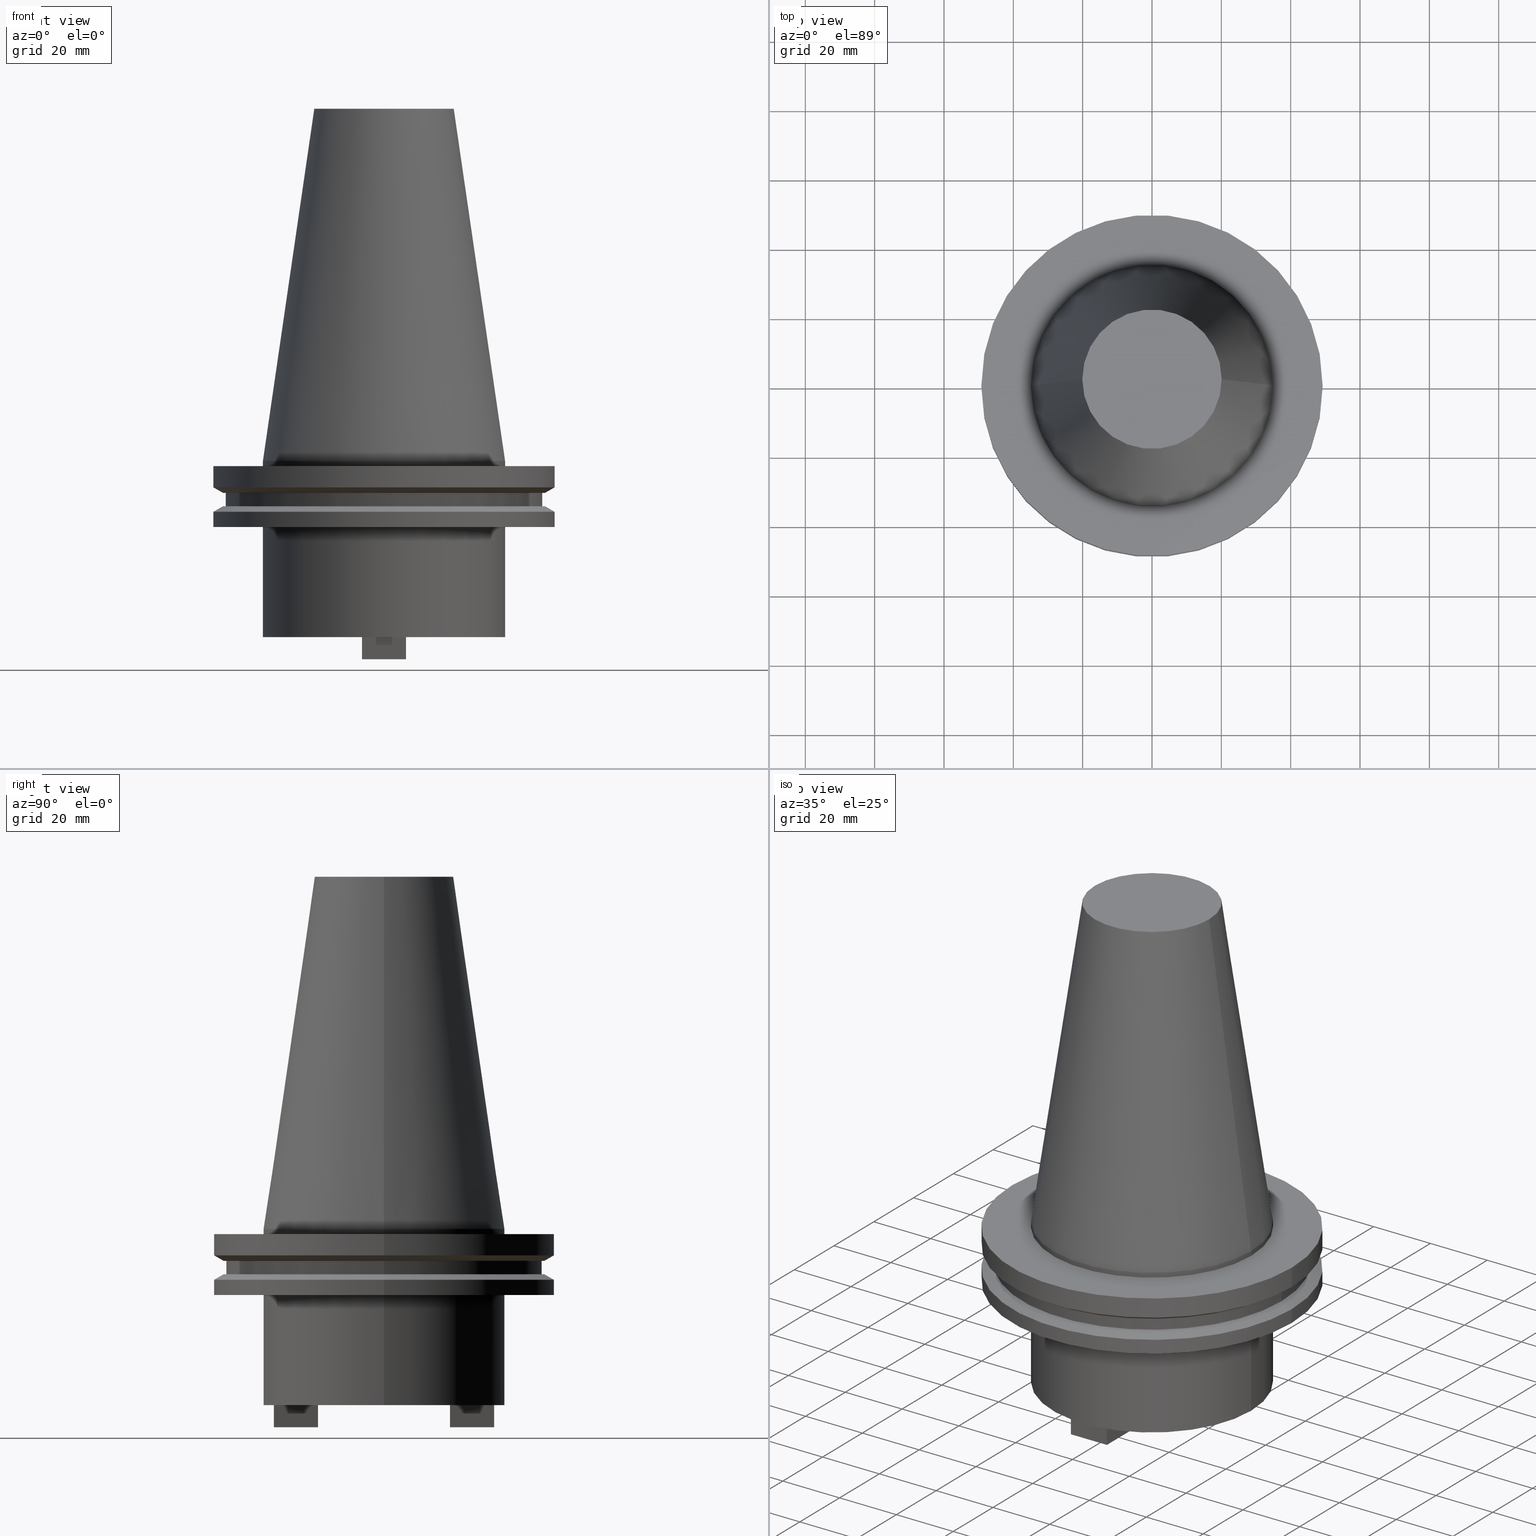
[diagram: canonical four-view strip — front | top / right | iso, engineering-drawing reading convention]
A machine part, canonical four-view strip (front | top / right | iso — engineering-drawing reading convention). The complete STEP part file that produces these views, byte-faithful:
ISO-10303-21;
HEADER;
FILE_DESCRIPTION (( 'STEP AP203' ),
    '1' );
FILE_NAME ('BCV50-SMC1_250-2.stp',
    '2022-03-03T20:04:54',
    ( '' ),
    ( '' ),
    'SwSTEP 2.0',
    'SolidWorks 2021',
    '' );
FILE_SCHEMA (( 'CONFIG_CONTROL_DESIGN' ));
ENDSEC;

DATA;
#1 = FACE_BOUND ( 'NONE', #823, .T. ) ;
#2 = CC_DESIGN_PERSON_AND_ORGANIZATION_ASSIGNMENT ( #783, #398, ( #545 ) ) ;
#3 = PERSON_AND_ORGANIZATION ( #336, #430 ) ;
#4 = CIRCLE ( 'NONE', #100, 46.43919780457007818 ) ;
#5 = CARTESIAN_POINT ( 'NONE',  ( 6.349999999999984546, -31.75000000000000711, -57.20000000000000995 ) ) ;
#6 = VERTEX_POINT ( 'NONE', #491 ) ;
#7 = DIRECTION ( 'NONE',  ( 1.000000000000000000, 0.000000000000000000, 0.000000000000000000 ) ) ;
#8 = CARTESIAN_POINT ( 'NONE',  ( 49.21499999999999631, 0.000000000000000000, -1.499999999999987566 ) ) ;
#9 = DIRECTION ( 'NONE',  ( -0.8660254037844273833, 1.060575238724893110E-16, 0.5000000000000195399 ) ) ;
#10 = ADVANCED_FACE ( 'NONE', ( #956 ), #411, .T. ) ;
#11 = EDGE_LOOP ( 'NONE', ( #751, #41 ) ) ;
#12 = PLANE ( 'NONE',  #531 ) ;
#13 = DIRECTION ( 'NONE',  ( -0.000000000000000000, -0.000000000000000000, 1.000000000000000000 ) ) ;
#14 = VERTEX_POINT ( 'NONE', #22 ) ;
#15 = VECTOR ( 'NONE', #243, 1000.000000000000000 ) ;
#16 = AXIS2_PLACEMENT_3D ( 'NONE', #386, #618, #224 ) ;
#17 = LOCAL_TIME ( 14, 4, 54.00000000000000000, #320 ) ;
#18 = DIRECTION ( 'NONE',  ( 1.000000000000000000, 0.000000000000000000, 0.000000000000000000 ) ) ;
#19 = ORIENTED_EDGE ( 'NONE', *, *, #240, .T. ) ;
#20 = DIRECTION ( 'NONE',  ( -0.000000000000000000, -0.000000000000000000, 1.000000000000000000 ) ) ;
#21 = EDGE_CURVE ( 'NONE', #711, #356, #577, .T. ) ;
#22 = CARTESIAN_POINT ( 'NONE',  ( 6.349999999999992539, 31.75000000000000000, -57.20000000000000995 ) ) ;
#23 = ORIENTED_EDGE ( 'NONE', *, *, #560, .F. ) ;
#24 = DIRECTION ( 'NONE',  ( -0.000000000000000000, -1.000000000000000000, -0.000000000000000000 ) ) ;
#25 = EDGE_CURVE ( 'NONE', #559, #865, #256, .T. ) ;
#26 = CARTESIAN_POINT ( 'NONE',  ( 0.000000000000000000, 34.92499999999999716, -35.04999999999999716 ) ) ;
#27 = CARTESIAN_POINT ( 'NONE',  ( -6.350000000000004974, 31.75000000000000000, -57.20000000000000995 ) ) ;
#28 = ORIENTED_EDGE ( 'NONE', *, *, #927, .F. ) ;
#29 = CIRCLE ( 'NONE', #756, 46.43919780457007818 ) ;
#30 = DIRECTION ( 'NONE',  ( -0.000000000000000000, -0.000000000000000000, 1.000000000000000000 ) ) ;
#31 = EDGE_LOOP ( 'NONE', ( #1004, #474 ) ) ;
#32 = AXIS2_PLACEMENT_3D ( 'NONE', #974, #666, #341 ) ;
#33 =( GEOMETRIC_REPRESENTATION_CONTEXT ( 3 ) GLOBAL_UNCERTAINTY_ASSIGNED_CONTEXT ( ( #522 ) ) GLOBAL_UNIT_ASSIGNED_CONTEXT ( ( #118, #58, #203 ) ) REPRESENTATION_CONTEXT ( 'NONE', 'WORKASPACE' ) );
#34 = FACE_OUTER_BOUND ( 'NONE', #742, .T. ) ;
#35 = CONICAL_SURFACE ( 'NONE', #70, 49.21499999999998920, 1.047197551196554333 ) ;
#36 = DIRECTION ( 'NONE',  ( 1.000000000000000000, 0.000000000000000000, 0.000000000000000000 ) ) ;
#37 = ORIENTED_EDGE ( 'NONE', *, *, #42, .T. ) ;
#38 = DIRECTION ( 'NONE',  ( 1.000000000000000000, 0.000000000000000000, 0.000000000000000000 ) ) ;
#39 = DIRECTION ( 'NONE',  ( -0.000000000000000000, -0.000000000000000000, 1.000000000000000000 ) ) ;
#40 = DIRECTION ( 'NONE',  ( 0.000000000000000000, 0.000000000000000000, -1.000000000000000000 ) ) ;
#41 = ORIENTED_EDGE ( 'NONE', *, *, #1005, .T. ) ;
#42 = EDGE_CURVE ( 'NONE', #119, #865, #929, .T. ) ;
#43 = LINE ( 'NONE', #901, #332 ) ;
#44 = ORIENTED_EDGE ( 'NONE', *, *, #831, .F. ) ;
#45 = DIRECTION ( 'NONE',  ( 1.000000000000000000, 0.000000000000000000, 0.000000000000000000 ) ) ;
#46 = DIRECTION ( 'NONE',  ( 1.000000000000000000, 0.000000000000000000, 0.000000000000000000 ) ) ;
#47 = ORIENTED_EDGE ( 'NONE', *, *, #517, .F. ) ;
#48 = FACE_OUTER_BOUND ( 'NONE', #372, .T. ) ;
#49 = VECTOR ( 'NONE', #749, 1000.000000000000000 ) ;
#50 = FACE_OUTER_BOUND ( 'NONE', #262, .T. ) ;
#51 = AXIS2_PLACEMENT_3D ( 'NONE', #720, #488, #944 ) ;
#52 = AXIS2_PLACEMENT_3D ( 'NONE', #515, #30, #753 ) ;
#53 = DIRECTION ( 'NONE',  ( -1.000000000000000000, 0.000000000000000000, 0.000000000000000000 ) ) ;
#54 = APPROVAL_PERSON_ORGANIZATION ( #3, #209, #940 ) ;
#55 = CARTESIAN_POINT ( 'NONE',  ( 0.000000000000000000, 0.000000000000000000, -50.79999999999999716 ) ) ;
#56 = VERTEX_POINT ( 'NONE', #733 ) ;
#57 = CARTESIAN_POINT ( 'NONE',  ( -6.350000000000004974, 31.75000000000000000, -57.20000000000000995 ) ) ;
#58 =( NAMED_UNIT ( * ) PLANE_ANGLE_UNIT ( ) SI_UNIT ( $, .RADIAN. ) );
#59 = FACE_OUTER_BOUND ( 'NONE', #975, .T. ) ;
#60 = VERTEX_POINT ( 'NONE', #808 ) ;
#61 = EDGE_CURVE ( 'NONE', #223, #14, #106, .T. ) ;
#62 = LINE ( 'NONE', #1001, #960 ) ;
#63 = ADVANCED_FACE ( 'NONE', ( #91 ), #408, .F. ) ;
#64 = LINE ( 'NONE', #892, #196 ) ;
#65 = DIRECTION ( 'NONE',  ( 0.000000000000000000, -0.000000000000000000, 1.000000000000000000 ) ) ;
#66 = ORIENTED_EDGE ( 'NONE', *, *, #645, .F. ) ;
#67 = CARTESIAN_POINT ( 'NONE',  ( 0.000000000000000000, 0.000000000000000000, 101.5999999999999943 ) ) ;
#68 = AXIS2_PLACEMENT_3D ( 'NONE', #403, #802, #641 ) ;
#69 = DATE_TIME_ROLE ( 'creation_date' ) ;
#70 = AXIS2_PLACEMENT_3D ( 'NONE', #825, #40, #607 ) ;
#71 = DIRECTION ( 'NONE',  ( 1.000000000000000000, 0.000000000000000000, 0.000000000000000000 ) ) ;
#72 = ORIENTED_EDGE ( 'NONE', *, *, #883, .F. ) ;
#73 = DIRECTION ( 'NONE',  ( 1.000000000000000000, 0.000000000000000000, 0.000000000000000000 ) ) ;
#74 = EDGE_CURVE ( 'NONE', #445, #583, #131, .T. ) ;
#75 = CARTESIAN_POINT ( 'NONE',  ( 0.000000000000000000, 0.000000000000000000, -13.05499999999999794 ) ) ;
#76 = ORIENTED_EDGE ( 'NONE', *, *, #973, .T. ) ;
#77 = DIRECTION ( 'NONE',  ( -0.000000000000000000, -0.000000000000000000, 1.000000000000000000 ) ) ;
#78 = CARTESIAN_POINT ( 'NONE',  ( 0.000000000000000000, 0.000000000000000000, -13.05499999999999794 ) ) ;
#79 = VERTEX_POINT ( 'NONE', #342 ) ;
#80 = DIRECTION ( 'NONE',  ( -0.000000000000000000, -0.000000000000000000, 1.000000000000000000 ) ) ;
#81 = COORDINATED_UNIVERSAL_TIME_OFFSET ( 6, 0, .BEHIND. ) ;
#82 = AXIS2_PLACEMENT_3D ( 'NONE', #282, #667, #759 ) ;
#83 = ORIENTED_EDGE ( 'NONE', *, *, #469, .F. ) ;
#84 = CIRCLE ( 'NONE', #915, 46.43919780457007818 ) ;
#85 = CARTESIAN_POINT ( 'NONE',  ( 34.92499999999999005, 0.000000000000000000, -1.499999999999987566 ) ) ;
#86 = VERTEX_POINT ( 'NONE', #950 ) ;
#87 = EDGE_CURVE ( 'NONE', #435, #664, #88, .T. ) ;
#88 = LINE ( 'NONE', #404, #276 ) ;
#89 = EDGE_LOOP ( 'NONE', ( #219, #674, #766, #93 ) ) ;
#90 = DIRECTION ( 'NONE',  ( 1.000000000000000000, 0.000000000000000000, 0.000000000000000000 ) ) ;
#91 = FACE_OUTER_BOUND ( 'NONE', #451, .T. ) ;
#92 = EDGE_CURVE ( 'NONE', #776, #490, #565, .T. ) ;
#93 = ORIENTED_EDGE ( 'NONE', *, *, #986, .F. ) ;
#94 = DIRECTION ( 'NONE',  ( 1.365923996832130130E-16, 1.000000000000000000, 0.000000000000000000 ) ) ;
#95 = CARTESIAN_POINT ( 'NONE',  ( 0.000000000000000000, 0.000000000000000000, -35.04999999999999716 ) ) ;
#96 = EDGE_LOOP ( 'NONE', ( #714, #330, #265, #461 ) ) ;
#97 = VECTOR ( 'NONE', #885, 1000.000000000000000 ) ;
#98 = VECTOR ( 'NONE', #94, 1000.000000000000000 ) ;
#99 = ADVANCED_FACE ( 'NONE', ( #649 ), #799, .T. ) ;
#100 = AXIS2_PLACEMENT_3D ( 'NONE', #75, #388, #842 ) ;
#101 = LOCAL_TIME ( 14, 4, 54.00000000000000000, #468 ) ;
#102 = DIRECTION ( 'NONE',  ( -0.000000000000000000, -0.000000000000000000, 1.000000000000000000 ) ) ;
#103 = ORIENTED_EDGE ( 'NONE', *, *, #390, .F. ) ;
#104 = EDGE_CURVE ( 'NONE', #309, #880, #187, .T. ) ;
#105 = CARTESIAN_POINT ( 'NONE',  ( 34.92499999999999005, 0.000000000000000000, 101.5999999999999943 ) ) ;
#106 = LINE ( 'NONE', #419, #15 ) ;
#107 = CYLINDRICAL_SURFACE ( 'NONE', #166, 49.21499999999998920 ) ;
#108 = ORIENTED_EDGE ( 'NONE', *, *, #418, .T. ) ;
#109 = DIRECTION ( 'NONE',  ( 1.000000000000000000, -1.092739197465706668E-15, 0.000000000000000000 ) ) ;
#110 = DIRECTION ( 'NONE',  ( 1.000000000000000000, -1.092739197465706471E-15, -0.000000000000000000 ) ) ;
#111 = CARTESIAN_POINT ( 'NONE',  ( 0.000000000000000000, 0.000000000000000000, -9.204999999999991189 ) ) ;
#112 = VERTEX_POINT ( 'NONE', #987 ) ;
#113 = CARTESIAN_POINT ( 'NONE',  ( 0.000000000000000000, 0.000000000000000000, -1.499999999999987566 ) ) ;
#114 = AXIS2_PLACEMENT_3D ( 'NONE', #465, #65, #916 ) ;
#115 = AXIS2_PLACEMENT_3D ( 'NONE', #673, #596, #198 ) ;
#116 = LINE ( 'NONE', #834, #331 ) ;
#117 = EDGE_CURVE ( 'NONE', #989, #119, #818, .T. ) ;
#118 =( LENGTH_UNIT ( ) NAMED_UNIT ( * ) SI_UNIT ( .MILLI., .METRE. ) );
#119 = VERTEX_POINT ( 'NONE', #896 ) ;
#120 = DIRECTION ( 'NONE',  ( -0.000000000000000000, -0.000000000000000000, 1.000000000000000000 ) ) ;
#121 = EDGE_LOOP ( 'NONE', ( #967, #138, #234, #427 ) ) ;
#122 = LINE ( 'NONE', #436, #49 ) ;
#123 = EDGE_CURVE ( 'NONE', #160, #472, #197, .T. ) ;
#124 = EDGE_LOOP ( 'NONE', ( #746, #456, #296, #557 ) ) ;
#125 = CARTESIAN_POINT ( 'NONE',  ( 0.000000000000000000, 0.000000000000000000, -50.80000000000001137 ) ) ;
#126 = DIRECTION ( 'NONE',  ( -1.000000000000000000, -5.463695987328527423E-16, 0.000000000000000000 ) ) ;
#127 = APPROVAL_STATUS ( 'not_yet_approved' ) ;
#128 = EDGE_CURVE ( 'NONE', #726, #815, #122, .T. ) ;
#129 = CARTESIAN_POINT ( 'NONE',  ( -49.21500000000000341, 6.027099222003699404E-15, -7.602389855251287187 ) ) ;
#130 = ORIENTED_EDGE ( 'NONE', *, *, #139, .T. ) ;
#131 = CIRCLE ( 'NONE', #595, 49.21499999999999631 ) ;
#132 = LINE ( 'NONE', #442, #462 ) ;
#133 = AXIS2_PLACEMENT_3D ( 'NONE', #889, #384, #534 ) ;
#134 = DIRECTION ( 'NONE',  ( -0.000000000000000000, -0.000000000000000000, 1.000000000000000000 ) ) ;
#135 = AXIS2_PLACEMENT_3D ( 'NONE', #899, #745, #53 ) ;
#136 = ADVANCED_FACE ( 'NONE', ( #50, #754 ), #813, .F. ) ;
#137 = LINE ( 'NONE', #143, #836 ) ;
#138 = ORIENTED_EDGE ( 'NONE', *, *, #424, .T. ) ;
#139 = EDGE_CURVE ( 'NONE', #583, #445, #258, .T. ) ;
#140 = PRODUCT_DEFINITION ( 'UNKNOWN', '', #545, #725 ) ;
#141 = DIRECTION ( 'NONE',  ( 0.000000000000000000, 0.000000000000000000, -1.000000000000000000 ) ) ;
#142 = DIRECTION ( 'NONE',  ( 1.000000000000000000, 0.000000000000000000, 0.000000000000000000 ) ) ;
#143 = CARTESIAN_POINT ( 'NONE',  ( -6.350000000000003197, 19.04999999999999716, -57.20000000000000995 ) ) ;
#144 = VERTEX_POINT ( 'NONE', #358 ) ;
#145 = CYLINDRICAL_SURFACE ( 'NONE', #630, 34.92499999999999005 ) ;
#146 = DIRECTION ( 'NONE',  ( -0.000000000000000000, -0.000000000000000000, 1.000000000000000000 ) ) ;
#147 = EDGE_LOOP ( 'NONE', ( #801, #170, #19, #575 ) ) ;
#148 = FACE_BOUND ( 'NONE', #416, .T. ) ;
#149 = SECURITY_CLASSIFICATION_LEVEL ( 'unclassified' ) ;
#150 = AXIS2_PLACEMENT_3D ( 'NONE', #113, #120, #354 ) ;
#151 = CIRCLE ( 'NONE', #871, 45.64500000000000313 ) ;
#152 = DIRECTION ( 'NONE',  ( 1.000000000000000000, 0.000000000000000000, 0.000000000000000000 ) ) ;
#153 = ORIENTED_EDGE ( 'NONE', *, *, #87, .T. ) ;
#154 = LINE ( 'NONE', #232, #981 ) ;
#155 = DATE_AND_TIME ( #793, #101 ) ;
#156 = DIRECTION ( 'NONE',  ( 1.000000000000000000, 0.000000000000000000, 0.000000000000000000 ) ) ;
#157 = ORIENTED_EDGE ( 'NONE', *, *, #517, .T. ) ;
#158 = CARTESIAN_POINT ( 'NONE',  ( 0.000000000000000000, 0.000000000000000000, 101.5999999999999943 ) ) ;
#159 = PERSON_AND_ORGANIZATION_ROLE ( 'creator' ) ;
#160 = VERTEX_POINT ( 'NONE', #589 ) ;
#161 = EDGE_CURVE ( 'NONE', #880, #502, #365, .T. ) ;
#162 = DIRECTION ( 'NONE',  ( -0.000000000000000000, -0.000000000000000000, 1.000000000000000000 ) ) ;
#163 = CALENDAR_DATE ( 2022, 3, 3 ) ;
#164 = VECTOR ( 'NONE', #348, 1000.000000000000000 ) ;
#165 = EDGE_LOOP ( 'NONE', ( #508, #108, #157, #486 ) ) ;
#166 = AXIS2_PLACEMENT_3D ( 'NONE', #420, #734, #36 ) ;
#167 = DIRECTION ( 'NONE',  ( -0.000000000000000000, -0.000000000000000000, 1.000000000000000000 ) ) ;
#168 = DIRECTION ( 'NONE',  ( -0.000000000000000000, -0.000000000000000000, 1.000000000000000000 ) ) ;
#169 = EDGE_CURVE ( 'NONE', #60, #664, #706, .T. ) ;
#170 = ORIENTED_EDGE ( 'NONE', *, *, #614, .F. ) ;
#171 = ORIENTED_EDGE ( 'NONE', *, *, #233, .T. ) ;
#172 = DIRECTION ( 'NONE',  ( -0.000000000000000000, -0.000000000000000000, 1.000000000000000000 ) ) ;
#173 = DIRECTION ( 'NONE',  ( -0.000000000000000000, -0.000000000000000000, 1.000000000000000000 ) ) ;
#174 = ADVANCED_FACE ( 'NONE', ( #676, #34 ), #268, .F. ) ;
#175 = ORIENTED_EDGE ( 'NONE', *, *, #61, .T. ) ;
#176 = ORIENTED_EDGE ( 'NONE', *, *, #817, .T. ) ;
#177 = ORIENTED_EDGE ( 'NONE', *, *, #655, .F. ) ;
#178 = CC_DESIGN_PERSON_AND_ORGANIZATION_ASSIGNMENT ( #936, #159, ( #545 ) ) ;
#179 = ORIENTED_EDGE ( 'NONE', *, *, #612, .T. ) ;
#180 = VECTOR ( 'NONE', #637, 1000.000000000000000 ) ;
#181 = PLANE ( 'NONE',  #360 ) ;
#182 = CARTESIAN_POINT ( 'NONE',  ( 0.000000000000000000, 0.000000000000000000, -9.204999999999991189 ) ) ;
#183 = ORIENTED_EDGE ( 'NONE', *, *, #424, .F. ) ;
#184 = EDGE_CURVE ( 'NONE', #893, #435, #29, .T. ) ;
#185 = DIRECTION ( 'NONE',  ( -0.000000000000000000, -0.000000000000000000, 1.000000000000000000 ) ) ;
#186 = ORIENTED_EDGE ( 'NONE', *, *, #390, .T. ) ;
#187 = LINE ( 'NONE', #681, #97 ) ;
#188 = CARTESIAN_POINT ( 'NONE',  ( 0.000000000000000000, 0.000000000000000000, 0.000000000000000000 ) ) ;
#189 = ORIENTED_EDGE ( 'NONE', *, *, #560, .T. ) ;
#190 = CYLINDRICAL_SURFACE ( 'NONE', #52, 34.92499999999999005 ) ;
#191 = DIRECTION ( 'NONE',  ( -0.000000000000000000, -0.000000000000000000, 1.000000000000000000 ) ) ;
#192 = ORIENTED_EDGE ( 'NONE', *, *, #773, .F. ) ;
#193 = AXIS2_PLACEMENT_3D ( 'NONE', #95, #162, #339 ) ;
#194 = FACE_OUTER_BOUND ( 'NONE', #246, .T. ) ;
#195 = VECTOR ( 'NONE', #894, 1000.000000000000000 ) ;
#196 = VECTOR ( 'NONE', #971, 1000.000000000000000 ) ;
#197 = LINE ( 'NONE', #516, #492 ) ;
#198 = DIRECTION ( 'NONE',  ( 1.000000000000000000, 0.000000000000000000, 0.000000000000000000 ) ) ;
#199 = ORIENTED_EDGE ( 'NONE', *, *, #773, .T. ) ;
#200 = DIRECTION ( 'NONE',  ( -0.000000000000000000, -0.000000000000000000, 1.000000000000000000 ) ) ;
#201 = ORIENTED_EDGE ( 'NONE', *, *, #685, .F. ) ;
#202 = CYLINDRICAL_SURFACE ( 'NONE', #897, 34.92499999999999716 ) ;
#203 =( NAMED_UNIT ( * ) SI_UNIT ( $, .STERADIAN. ) SOLID_ANGLE_UNIT ( ) );
#204 = ADVANCED_FACE ( 'NONE', ( #903 ), #202, .T. ) ;
#205 = CARTESIAN_POINT ( 'NONE',  ( -7.339999999999969660, 8.988907505741536366E-16, -50.80000000000001137 ) ) ;
#206 = ORIENTED_EDGE ( 'NONE', *, *, #845, .T. ) ;
#207 = CARTESIAN_POINT ( 'NONE',  ( 0.000000000000000000, 49.21499999999998920, -19.04999999999999716 ) ) ;
#208 = EDGE_CURVE ( 'NONE', #989, #978, #738, .T. ) ;
#209 = APPROVAL ( #1007, 'UNSPECIFIED' ) ;
#210 = CARTESIAN_POINT ( 'NONE',  ( 34.92499999999999716, 0.000000000000000000, 101.5999999999999943 ) ) ;
#211 = EDGE_LOOP ( 'NONE', ( #591, #586, #421, #748 ) ) ;
#212 = AXIS2_PLACEMENT_3D ( 'NONE', #67, #532, #543 ) ;
#213 = CARTESIAN_POINT ( 'NONE',  ( 46.43919780457007818, 5.857130358318725715E-15, -13.05499999999999794 ) ) ;
#214 = AXIS2_PLACEMENT_3D ( 'NONE', #908, #828, #962 ) ;
#215 = CIRCLE ( 'NONE', #790, 49.21499999999998920 ) ;
#216 = PERSON_AND_ORGANIZATION ( #336, #430 ) ;
#217 = CC_DESIGN_APPROVAL ( #209, ( #665 ) ) ;
#218 = DIRECTION ( 'NONE',  ( -1.000000000000000000, -5.463695987328527423E-16, 0.000000000000000000 ) ) ;
#219 = ORIENTED_EDGE ( 'NONE', *, *, #963, .T. ) ;
#220 = EDGE_CURVE ( 'NONE', #267, #56, #397, .T. ) ;
#221 = PLANE ( 'NONE',  #563 ) ;
#222 = CARTESIAN_POINT ( 'NONE',  ( 6.349999999999984546, -31.75000000000000711, -57.20000000000000995 ) ) ;
#223 = VERTEX_POINT ( 'NONE', #57 ) ;
#224 = DIRECTION ( 'NONE',  ( -1.000000000000000000, 0.000000000000000000, -0.000000000000000000 ) ) ;
#225 = CARTESIAN_POINT ( 'NONE',  ( 0.000000000000000000, 0.000000000000000000, -19.04999999999999716 ) ) ;
#226 = EDGE_LOOP ( 'NONE', ( #270, #28, #574, #199 ) ) ;
#227 = DIRECTION ( 'NONE',  ( 1.365923996832130130E-16, 1.000000000000000000, 0.000000000000000000 ) ) ;
#228 = CALENDAR_DATE ( 2022, 3, 3 ) ;
#229 = AXIS2_PLACEMENT_3D ( 'NONE', #947, #471, #7 ) ;
#230 = PLANE ( 'NONE',  #948 ) ;
#231 = ORIENTED_EDGE ( 'NONE', *, *, #752, .T. ) ;
#232 = CARTESIAN_POINT ( 'NONE',  ( 6.349999999999994316, 19.05000000000000426, -57.20000000000000995 ) ) ;
#233 = EDGE_CURVE ( 'NONE', #6, #954, #526, .T. ) ;
#234 = ORIENTED_EDGE ( 'NONE', *, *, #551, .T. ) ;
#235 = DIRECTION ( 'NONE',  ( 0.000000000000000000, 1.000000000000000000, 0.000000000000000000 ) ) ;
#236 = DIRECTION ( 'NONE',  ( -0.000000000000000000, -0.000000000000000000, 1.000000000000000000 ) ) ;
#237 = VERTEX_POINT ( 'NONE', #584 ) ;
#238 = DATE_TIME_ROLE ( 'classification_date' ) ;
#239 = EDGE_CURVE ( 'NONE', #60, #445, #132, .T. ) ;
#240 = EDGE_CURVE ( 'NONE', #237, #711, #116, .T. ) ;
#241 = CARTESIAN_POINT ( 'NONE',  ( -34.92499999999999005, 0.000000000000000000, 0.000000000000000000 ) ) ;
#242 = CARTESIAN_POINT ( 'NONE',  ( 0.000000000000000000, 0.000000000000000000, -19.04999999999999716 ) ) ;
#243 = DIRECTION ( 'NONE',  ( 1.000000000000000000, -0.000000000000000000, -0.000000000000000000 ) ) ;
#244 = AXIS2_PLACEMENT_3D ( 'NONE', #611, #141, #994 ) ;
#245 = AXIS2_PLACEMENT_3D ( 'NONE', #628, #537, #693 ) ;
#246 = EDGE_LOOP ( 'NONE', ( #257, #1000, #179, #103 ) ) ;
#247 = VECTOR ( 'NONE', #905, 999.9999999999998863 ) ;
#248 = CARTESIAN_POINT ( 'NONE',  ( 0.000000000000000000, 0.000000000000000000, -9.204999999999991189 ) ) ;
#249 = CARTESIAN_POINT ( 'NONE',  ( -46.43919780457007818, 5.857130358318727293E-15, -9.204999999999991189 ) ) ;
#250 = ORIENTED_EDGE ( 'NONE', *, *, #670, .T. ) ;
#251 = CARTESIAN_POINT ( 'NONE',  ( 6.349999999999992539, 31.75000000000000000, -50.80000000000000426 ) ) ;
#252 = EDGE_CURVE ( 'NONE', #664, #583, #744, .T. ) ;
#253 = ORIENTED_EDGE ( 'NONE', *, *, #21, .F. ) ;
#254 = EDGE_LOOP ( 'NONE', ( #525, #770, #37, #946 ) ) ;
#255 = ORIENTED_EDGE ( 'NONE', *, *, #74, .T. ) ;
#256 = LINE ( 'NONE', #325, #913 ) ;
#257 = ORIENTED_EDGE ( 'NONE', *, *, #25, .F. ) ;
#258 = CIRCLE ( 'NONE', #835, 49.21499999999999631 ) ;
#259 = AXIS2_PLACEMENT_3D ( 'NONE', #510, #39, #425 ) ;
#260 = CARTESIAN_POINT ( 'NONE',  ( -49.21499999999999631, 6.027099222003697826E-15, -1.499999999999987566 ) ) ;
#261 = VECTOR ( 'NONE', #167, 1000.000000000000000 ) ;
#262 = EDGE_LOOP ( 'NONE', ( #322, #605 ) ) ;
#263 = CARTESIAN_POINT ( 'NONE',  ( 0.000000000000000000, 0.000000000000000000, 101.5999999999999943 ) ) ;
#264 = CARTESIAN_POINT ( 'NONE',  ( 49.21499999999998920, 0.000000000000000000, -19.04999999999999716 ) ) ;
#265 = ORIENTED_EDGE ( 'NONE', *, *, #497, .F. ) ;
#266 = FACE_OUTER_BOUND ( 'NONE', #121, .T. ) ;
#267 = VERTEX_POINT ( 'NONE', #918 ) ;
#268 = PLANE ( 'NONE',  #82 ) ;
#269 = DIRECTION ( 'NONE',  ( -0.000000000000000000, -0.000000000000000000, 1.000000000000000000 ) ) ;
#270 = ORIENTED_EDGE ( 'NONE', *, *, #830, .T. ) ;
#271 = EDGE_CURVE ( 'NONE', #112, #490, #767, .T. ) ;
#272 = LINE ( 'NONE', #811, #914 ) ;
#273 = DIRECTION ( 'NONE',  ( 1.000000000000000000, 0.000000000000000000, 0.000000000000000000 ) ) ;
#274 = CARTESIAN_POINT ( 'NONE',  ( 20.10819343178871321, 3.369811209154858606E-15, 101.5999999999999801 ) ) ;
#275 = ORIENTED_EDGE ( 'NONE', *, *, #169, .F. ) ;
#276 = VECTOR ( 'NONE', #9, 1000.000000000000000 ) ;
#277 = CIRCLE ( 'NONE', #68, 34.92499999999999005 ) ;
#278 = CARTESIAN_POINT ( 'NONE',  ( -49.21499999999998920, 6.027099222003697037E-15, -19.04999999999999716 ) ) ;
#279 = VERTEX_POINT ( 'NONE', #213 ) ;
#280 = AXIS2_PLACEMENT_3D ( 'NONE', #671, #592, #604 ) ;
#281 = CIRCLE ( 'NONE', #964, 45.64500000000000313 ) ;
#282 = CARTESIAN_POINT ( 'NONE',  ( 0.000000000000000000, 45.64500000000000313, -13.05499999999999794 ) ) ;
#283 = EDGE_CURVE ( 'NONE', #279, #303, #661, .T. ) ;
#284 = CARTESIAN_POINT ( 'NONE',  ( 0.000000000000000000, 0.000000000000000000, -7.602389855251287187 ) ) ;
#285 = DIRECTION ( 'NONE',  ( -1.092739197465706668E-15, -1.000000000000000000, 0.000000000000000000 ) ) ;
#286 = ORIENTED_EDGE ( 'NONE', *, *, #789, .T. ) ;
#287 = ADVANCED_FACE ( 'NONE', ( #1, #293 ), #1006, .F. ) ;
#288 = CARTESIAN_POINT ( 'NONE',  ( 0.000000000000000000, 0.000000000000000000, -7.602389855251287187 ) ) ;
#289 = EDGE_CURVE ( 'NONE', #303, #267, #782, .T. ) ;
#290 = CC_DESIGN_PERSON_AND_ORGANIZATION_ASSIGNMENT ( #778, #459, ( #665 ) ) ;
#291 = LINE ( 'NONE', #1003, #692 ) ;
#292 = ORIENTED_EDGE ( 'NONE', *, *, #601, .F. ) ;
#293 = FACE_OUTER_BOUND ( 'NONE', #941, .T. ) ;
#294 = ADVANCED_FACE ( 'NONE', ( #310 ), #990, .F. ) ;
#295 = DIRECTION ( 'NONE',  ( -0.000000000000000000, -0.000000000000000000, 1.000000000000000000 ) ) ;
#296 = ORIENTED_EDGE ( 'NONE', *, *, #831, .T. ) ;
#297 = FACE_OUTER_BOUND ( 'NONE', #89, .T. ) ;
#298 = CIRCLE ( 'NONE', #615, 45.64500000000000313 ) ;
#299 = CONICAL_SURFACE ( 'NONE', #135, 34.92499999999999005, 0.1448138465474119452 ) ;
#300 = DATE_AND_TIME ( #163, #17 ) ;
#301 = APPROVAL ( #127, 'UNSPECIFIED' ) ;
#302 = FACE_OUTER_BOUND ( 'NONE', #805, .T. ) ;
#303 = VERTEX_POINT ( 'NONE', #859 ) ;
#304 = CARTESIAN_POINT ( 'NONE',  ( -7.339999999999966107, 8.988907505741532422E-16, -35.04999999999999716 ) ) ;
#305 = LINE ( 'NONE', #528, #804 ) ;
#306 = EDGE_LOOP ( 'NONE', ( #409, #72, #806, #643 ) ) ;
#307 = CARTESIAN_POINT ( 'NONE',  ( -49.21499999999998920, 0.000000000000000000, -14.65761014474876944 ) ) ;
#308 = FACE_OUTER_BOUND ( 'NONE', #124, .T. ) ;
#309 = VERTEX_POINT ( 'NONE', #473 ) ;
#310 = FACE_OUTER_BOUND ( 'NONE', #147, .T. ) ;
#311 = AXIS2_PLACEMENT_3D ( 'NONE', #335, #173, #654 ) ;
#312 = EDGE_CURVE ( 'NONE', #933, #843, #62, .T. ) ;
#313 = APPROVAL_DATE_TIME ( #382, #861 ) ;
#314 = VECTOR ( 'NONE', #697, 1000.000000000000000 ) ;
#315 = VECTOR ( 'NONE', #786, 1000.000000000000000 ) ;
#316 = ORIENTED_EDGE ( 'NONE', *, *, #184, .T. ) ;
#317 = CARTESIAN_POINT ( 'NONE',  ( 0.000000000000000000, 0.000000000000000000, -19.04999999999999716 ) ) ;
#318 = LINE ( 'NONE', #478, #819 ) ;
#319 = ADVANCED_FACE ( 'NONE', ( #626 ), #467, .F. ) ;
#320 = COORDINATED_UNIVERSAL_TIME_OFFSET ( 6, 0, .BEHIND. ) ;
#321 = ADVANCED_FACE ( 'NONE', ( #539 ), #221, .F. ) ;
#322 = ORIENTED_EDGE ( 'NONE', *, *, #458, .F. ) ;
#323 = DIRECTION ( 'NONE',  ( -1.365923996832131116E-16, 1.000000000000000000, -0.000000000000000000 ) ) ;
#324 = LINE ( 'NONE', #798, #493 ) ;
#325 = CARTESIAN_POINT ( 'NONE',  ( -34.92499999999999005, 4.277078946022130098E-15, 101.5999999999999943 ) ) ;
#326 = ORIENTED_EDGE ( 'NONE', *, *, #184, .F. ) ;
#327 = ADVANCED_FACE ( 'NONE', ( #912 ), #145, .T. ) ;
#328 = DIRECTION ( 'NONE',  ( -1.000000000000000000, 0.000000000000000000, 0.000000000000000000 ) ) ;
#329 = DIRECTION ( 'NONE',  ( -1.365923996832131609E-16, 1.000000000000000000, 0.000000000000000000 ) ) ;
#330 = ORIENTED_EDGE ( 'NONE', *, *, #670, .F. ) ;
#331 = VECTOR ( 'NONE', #432, 1000.000000000000000 ) ;
#332 = VECTOR ( 'NONE', #24, 1000.000000000000000 ) ;
#333 = EDGE_LOOP ( 'NONE', ( #858, #581, #993, #907 ) ) ;
#334 = DIRECTION ( 'NONE',  ( 0.8660254037844169472, 1.060575238724880168E-16, -0.5000000000000375255 ) ) ;
#335 = CARTESIAN_POINT ( 'NONE',  ( 0.000000000000000000, 0.000000000000000000, 101.5999999999999943 ) ) ;
#336 = PERSON ( 'UNSPECIFIED', 'UNSPECIFIED', 'UNSPECIFIED', ('UNSPECIFIED'), ('UNSPECIFIED'), ('UNSPECIFIED') ) ;
#337 = ORIENTED_EDGE ( 'NONE', *, *, #252, .F. ) ;
#338 = DIRECTION ( 'NONE',  ( 1.000000000000000000, -1.092739197465706471E-15, -0.000000000000000000 ) ) ;
#339 = DIRECTION ( 'NONE',  ( 1.000000000000000000, 0.000000000000000000, 0.000000000000000000 ) ) ;
#340 = ORIENTED_EDGE ( 'NONE', *, *, #289, .F. ) ;
#341 = DIRECTION ( 'NONE',  ( 1.000000000000000000, 0.000000000000000000, 0.000000000000000000 ) ) ;
#342 = CARTESIAN_POINT ( 'NONE',  ( 34.92499999999999716, 0.000000000000000000, -50.79999999999999716 ) ) ;
#343 = LINE ( 'NONE', #27, #566 ) ;
#344 = EDGE_LOOP ( 'NONE', ( #617, #176, #401, #415 ) ) ;
#345 = VECTOR ( 'NONE', #691, 1000.000000000000000 ) ;
#346 = VECTOR ( 'NONE', #765, 1000.000000000000000 ) ;
#347 = VECTOR ( 'NONE', #323, 1000.000000000000000 ) ;
#348 = DIRECTION ( 'NONE',  ( -0.000000000000000000, -0.000000000000000000, 1.000000000000000000 ) ) ;
#349 = DIRECTION ( 'NONE',  ( -0.000000000000000000, -0.000000000000000000, 1.000000000000000000 ) ) ;
#350 = ADVANCED_FACE ( 'NONE', ( #297 ), #631, .T. ) ;
#351 = CARTESIAN_POINT ( 'NONE',  ( -34.92499999999999716, 4.277078946022130887E-15, -50.79999999999999716 ) ) ;
#352 = ADVANCED_FACE ( 'NONE', ( #379 ), #536, .T. ) ;
#353 = ORIENTED_EDGE ( 'NONE', *, *, #271, .F. ) ;
#354 = DIRECTION ( 'NONE',  ( 1.000000000000000000, 0.000000000000000000, 0.000000000000000000 ) ) ;
#355 = DIRECTION ( 'NONE',  ( 0.000000000000000000, -0.000000000000000000, 1.000000000000000000 ) ) ;
#356 = VERTEX_POINT ( 'NONE', #304 ) ;
#357 = CARTESIAN_POINT ( 'NONE',  ( 6.349999999999984546, -19.05000000000000782, -57.20000000000000995 ) ) ;
#358 = CARTESIAN_POINT ( 'NONE',  ( 34.92499999999999716, 0.000000000000000000, -19.04999999999999716 ) ) ;
#359 = PERSON_AND_ORGANIZATION ( #336, #430 ) ;
#360 = AXIS2_PLACEMENT_3D ( 'NONE', #717, #955, #329 ) ;
#361 = DIRECTION ( 'NONE',  ( 1.365923996832132102E-16, -1.000000000000000000, 0.000000000000000000 ) ) ;
#362 = CONICAL_SURFACE ( 'NONE', #245, 46.43919780457007818, 1.047197551196575205 ) ;
#363 = CC_DESIGN_PERSON_AND_ORGANIZATION_ASSIGNMENT ( #359, #678, ( #475 ) ) ;
#364 = CIRCLE ( 'NONE', #400, 49.21500000000000341 ) ;
#365 = LINE ( 'NONE', #890, #479 ) ;
#366 = LINE ( 'NONE', #684, #632 ) ;
#367 = EDGE_LOOP ( 'NONE', ( #723, #189 ) ) ;
#368 = ADVANCED_FACE ( 'NONE', ( #457, #934, #849, #148 ), #704, .F. ) ;
#369 = DIRECTION ( 'NONE',  ( -0.000000000000000000, -0.000000000000000000, 1.000000000000000000 ) ) ;
#370 = APPLICATION_CONTEXT ( 'configuration controlled 3d designs of mechanical parts and assemblies' ) ;
#371 = DIRECTION ( 'NONE',  ( -0.000000000000000000, -0.000000000000000000, 1.000000000000000000 ) ) ;
#372 = EDGE_LOOP ( 'NONE', ( #917, #873, #572, #231 ) ) ;
#373 = DIRECTION ( 'NONE',  ( -0.000000000000000000, -0.000000000000000000, 1.000000000000000000 ) ) ;
#374 = CARTESIAN_POINT ( 'NONE',  ( -34.92499999999999005, 0.000000000000000000, 0.000000000000000000 ) ) ;
#375 = EDGE_CURVE ( 'NONE', #6, #567, #154, .T. ) ;
#376 = LINE ( 'NONE', #924, #982 ) ;
#377 = ORIENTED_EDGE ( 'NONE', *, *, #74, .F. ) ;
#378 = VECTOR ( 'NONE', #338, 1000.000000000000000 ) ;
#379 = FACE_OUTER_BOUND ( 'NONE', #344, .T. ) ;
#380 = CIRCLE ( 'NONE', #663, 34.92499999999999716 ) ;
#381 = CC_DESIGN_APPROVAL ( #861, ( #545 ) ) ;
#382 = DATE_AND_TIME ( #639, #820 ) ;
#383 = ADVANCED_FACE ( 'NONE', ( #407 ), #181, .F. ) ;
#384 = DIRECTION ( 'NONE',  ( 0.000000000000000000, -0.000000000000000000, 1.000000000000000000 ) ) ;
#385 = ORIENTED_EDGE ( 'NONE', *, *, #161, .T. ) ;
#386 = CARTESIAN_POINT ( 'NONE',  ( 0.000000000000000000, 49.21499999999999631, -1.499999999999992895 ) ) ;
#387 = ADVANCED_BREP_SHAPE_REPRESENTATION ( 'BCV50-SMC1_250-2', ( #891, #115 ), #33 ) ;
#388 = DIRECTION ( 'NONE',  ( -0.000000000000000000, -0.000000000000000000, 1.000000000000000000 ) ) ;
#389 = ORIENTED_EDGE ( 'NONE', *, *, #117, .F. ) ;
#390 = EDGE_CURVE ( 'NONE', #865, #119, #277, .T. ) ;
#391 = DIRECTION ( 'NONE',  ( 1.000000000000000000, -1.365923996832130130E-16, 0.000000000000000000 ) ) ;
#392 = LINE ( 'NONE', #640, #315 ) ;
#393 = ORIENTED_EDGE ( 'NONE', *, *, #239, .T. ) ;
#394 = DIRECTION ( 'NONE',  ( 1.000000000000000000, 0.000000000000000000, 0.000000000000000000 ) ) ;
#395 = ADVANCED_FACE ( 'NONE', ( #638 ), #499, .T. ) ;
#396 = CC_DESIGN_DATE_AND_TIME_ASSIGNMENT ( #546, #238, ( #665 ) ) ;
#397 = CIRCLE ( 'NONE', #214, 49.21499999999998920 ) ;
#398 = PERSON_AND_ORGANIZATION_ROLE ( 'design_supplier' ) ;
#399 = AXIS2_PLACEMENT_3D ( 'NONE', #992, #455, #999 ) ;
#400 = AXIS2_PLACEMENT_3D ( 'NONE', #284, #134, #142 ) ;
#401 = ORIENTED_EDGE ( 'NONE', *, *, #587, .T. ) ;
#402 = FACE_OUTER_BOUND ( 'NONE', #925, .T. ) ;
#403 = CARTESIAN_POINT ( 'NONE',  ( 0.000000000000000000, 0.000000000000000000, 0.000000000000000000 ) ) ;
#404 = CARTESIAN_POINT ( 'NONE',  ( -46.43919780457007818, 5.687161494633754392E-15, -9.204999999999991189 ) ) ;
#405 = ORIENTED_EDGE ( 'NONE', *, *, #883, .T. ) ;
#406 = CARTESIAN_POINT ( 'NONE',  ( 46.43919780457007818, 0.000000000000000000, -9.204999999999991189 ) ) ;
#407 = FACE_OUTER_BOUND ( 'NONE', #226, .T. ) ;
#408 = PLANE ( 'NONE',  #561 ) ;
#409 = ORIENTED_EDGE ( 'NONE', *, *, #797, .T. ) ;
#410 = EDGE_LOOP ( 'NONE', ( #1009, #206, #621, #23 ) ) ;
#411 = CONICAL_SURFACE ( 'NONE', #647, 46.43919780457007818, 1.047197551196575205 ) ;
#412 = AXIS2_PLACEMENT_3D ( 'NONE', #288, #606, #672 ) ;
#413 = AXIS2_PLACEMENT_3D ( 'NONE', #55, #146, #152 ) ;
#414 = CARTESIAN_POINT ( 'NONE',  ( 6.349999999999984546, -19.05000000000000782, -57.20000000000000995 ) ) ;
#415 = ORIENTED_EDGE ( 'NONE', *, *, #220, .F. ) ;
#416 = EDGE_LOOP ( 'NONE', ( #887, #535, #698, #538 ) ) ;
#417 = CARTESIAN_POINT ( 'NONE',  ( 6.349999999999984546, -19.05000000000001137, -50.80000000000000426 ) ) ;
#418 = EDGE_CURVE ( 'NONE', #629, #356, #318, .T. ) ;
#419 = CARTESIAN_POINT ( 'NONE',  ( 6.349999999999992539, 31.75000000000000000, -57.20000000000000995 ) ) ;
#420 = CARTESIAN_POINT ( 'NONE',  ( 0.000000000000000000, 0.000000000000000000, 101.5999999999999943 ) ) ;
#421 = ORIENTED_EDGE ( 'NONE', *, *, #289, .T. ) ;
#422 = EDGE_CURVE ( 'NONE', #490, #880, #864, .T. ) ;
#423 = DIRECTION ( 'NONE',  ( 1.000000000000000000, 0.000000000000000000, 0.000000000000000000 ) ) ;
#424 = EDGE_CURVE ( 'NONE', #309, #86, #949, .T. ) ;
#425 = DIRECTION ( 'NONE',  ( 1.000000000000000000, 0.000000000000000000, 0.000000000000000000 ) ) ;
#426 = CARTESIAN_POINT ( 'NONE',  ( 45.64500000000000313, 0.000000000000000000, -13.05499999999999794 ) ) ;
#427 = ORIENTED_EDGE ( 'NONE', *, *, #719, .T. ) ;
#428 = AXIS2_PLACEMENT_3D ( 'NONE', #763, #550, #923 ) ;
#429 = AXIS2_PLACEMENT_3D ( 'NONE', #807, #968, #822 ) ;
#430 = ORGANIZATION ( 'UNSPECIFIED', 'UNSPECIFIED', '' ) ;
#431 = PLANE ( 'NONE',  #739 ) ;
#432 = DIRECTION ( 'NONE',  ( -0.000000000000000000, -0.000000000000000000, 1.000000000000000000 ) ) ;
#433 = EDGE_LOOP ( 'NONE', ( #939, #466, #377, #796 ) ) ;
#434 = CYLINDRICAL_SURFACE ( 'NONE', #32, 49.21499999999999631 ) ;
#435 = VERTEX_POINT ( 'NONE', #249 ) ;
#436 = CARTESIAN_POINT ( 'NONE',  ( -45.64500000000000313, 5.589900314708094957E-15, 101.5999999999999943 ) ) ;
#437 = FACE_OUTER_BOUND ( 'NONE', #254, .T. ) ;
#438 = ORIENTED_EDGE ( 'NONE', *, *, #271, .T. ) ;
#439 = ADVANCED_FACE ( 'NONE', ( #875 ), #803, .T. ) ;
#440 = DIRECTION ( 'NONE',  ( 1.365923996832132102E-16, -1.000000000000000000, 0.000000000000000000 ) ) ;
#441 = EDGE_LOOP ( 'NONE', ( #972, #943, #487, #552 ) ) ;
#442 = CARTESIAN_POINT ( 'NONE',  ( 49.21499999999999631, 0.000000000000000000, 101.5999999999999943 ) ) ;
#443 = FACE_OUTER_BOUND ( 'NONE', #854, .T. ) ;
#444 = CARTESIAN_POINT ( 'NONE',  ( -45.64500000000000313, 5.589900314708094957E-15, -13.05499999999999794 ) ) ;
#445 = VERTEX_POINT ( 'NONE', #8 ) ;
#446 = CIRCLE ( 'NONE', #514, 49.21499999999998920 ) ;
#447 = AXIS2_PLACEMENT_3D ( 'NONE', #78, #814, #705 ) ;
#448 = CARTESIAN_POINT ( 'NONE',  ( 6.349999999999994316, 19.05000000000000426, -57.20000000000000995 ) ) ;
#449 = LINE ( 'NONE', #374, #247 ) ;
#450 = CARTESIAN_POINT ( 'NONE',  ( 6.349999999999984546, -31.75000000000001421, -50.80000000000000426 ) ) ;
#451 = EDGE_LOOP ( 'NONE', ( #253, #47 ) ) ;
#452 = DIRECTION ( 'NONE',  ( 1.000000000000000000, 0.000000000000000000, 0.000000000000000000 ) ) ;
#453 = EDGE_CURVE ( 'NONE', #279, #56, #324, .T. ) ;
#454 = DIRECTION ( 'NONE',  ( 1.000000000000000000, 0.000000000000000000, 0.000000000000000000 ) ) ;
#455 = DIRECTION ( 'NONE',  ( -0.000000000000000000, -0.000000000000000000, 1.000000000000000000 ) ) ;
#456 = ORIENTED_EDGE ( 'NONE', *, *, #812, .T. ) ;
#457 = FACE_BOUND ( 'NONE', #96, .T. ) ;
#458 = EDGE_CURVE ( 'NONE', #900, #512, #707, .T. ) ;
#459 = PERSON_AND_ORGANIZATION_ROLE ( 'classification_officer' ) ;
#460 = CARTESIAN_POINT ( 'NONE',  ( 45.64500000000000313, 0.000000000000000000, -9.204999999999991189 ) ) ;
#461 = ORIENTED_EDGE ( 'NONE', *, *, #123, .F. ) ;
#462 = VECTOR ( 'NONE', #191, 1000.000000000000000 ) ;
#463 = DIRECTION ( 'NONE',  ( -0.000000000000000000, -0.000000000000000000, 1.000000000000000000 ) ) ;
#464 = AXIS2_PLACEMENT_3D ( 'NONE', #242, #236, #394 ) ;
#465 = CARTESIAN_POINT ( 'NONE',  ( 0.000000000000000000, 46.43919780457007818, -9.204999999999998295 ) ) ;
#466 = ORIENTED_EDGE ( 'NONE', *, *, #252, .T. ) ;
#467 = PLANE ( 'NONE',  #244 ) ;
#468 = COORDINATED_UNIVERSAL_TIME_OFFSET ( 6, 0, .BEHIND. ) ;
#469 = EDGE_CURVE ( 'NONE', #978, #989, #898, .T. ) ;
#470 = CC_DESIGN_DATE_AND_TIME_ASSIGNMENT ( #619, #69, ( #140 ) ) ;
#471 = DIRECTION ( 'NONE',  ( -0.000000000000000000, -0.000000000000000000, 1.000000000000000000 ) ) ;
#472 = VERTEX_POINT ( 'NONE', #251 ) ;
#473 = CARTESIAN_POINT ( 'NONE',  ( -6.350000000000003197, -19.04999999999999361, -57.20000000000000995 ) ) ;
#474 = ORIENTED_EDGE ( 'NONE', *, *, #653, .F. ) ;
#475 = PRODUCT ( 'BCV50-SMC1_250-2', 'BCV50-SMC1_250-2', '', ( #523 ) ) ;
#476 = DIRECTION ( 'NONE',  ( -0.000000000000000000, -0.000000000000000000, 1.000000000000000000 ) ) ;
#477 = AXIS2_PLACEMENT_3D ( 'NONE', #571, #13, #657 ) ;
#478 = CARTESIAN_POINT ( 'NONE',  ( -7.339999999999966107, 8.988907505741532422E-16, 0.000000000000000000 ) ) ;
#479 = VECTOR ( 'NONE', #110, 1000.000000000000000 ) ;
#480 = VECTOR ( 'NONE', #185, 1000.000000000000000 ) ;
#481 = DIRECTION ( 'NONE',  ( 0.000000000000000000, -0.000000000000000000, 1.000000000000000000 ) ) ;
#482 = APPROVAL_STATUS ( 'not_yet_approved' ) ;
#483 = AXIS2_PLACEMENT_3D ( 'NONE', #188, #501, #712 ) ;
#484 = ORIENTED_EDGE ( 'NONE', *, *, #375, .T. ) ;
#485 = CARTESIAN_POINT ( 'NONE',  ( 6.349999999999984546, -31.75000000000000711, -50.80000000000000426 ) ) ;
#486 = ORIENTED_EDGE ( 'NONE', *, *, #240, .F. ) ;
#487 = ORIENTED_EDGE ( 'NONE', *, *, #685, .T. ) ;
#488 = DIRECTION ( 'NONE',  ( 0.000000000000000000, 0.000000000000000000, -1.000000000000000000 ) ) ;
#489 = ORIENTED_EDGE ( 'NONE', *, *, #719, .F. ) ;
#490 = VERTEX_POINT ( 'NONE', #573 ) ;
#491 = CARTESIAN_POINT ( 'NONE',  ( 6.349999999999994316, 19.05000000000000426, -57.20000000000000995 ) ) ;
#492 = VECTOR ( 'NONE', #970, 1000.000000000000000 ) ;
#493 = VECTOR ( 'NONE', #334, 1000.000000000000114 ) ;
#494 = CIRCLE ( 'NONE', #150, 34.92499999999999005 ) ;
#495 = VERTEX_POINT ( 'NONE', #878 ) ;
#496 = AXIS2_PLACEMENT_3D ( 'NONE', #590, #750, #454 ) ;
#497 = EDGE_CURVE ( 'NONE', #472, #567, #554, .T. ) ;
#498 = ORIENTED_EDGE ( 'NONE', *, *, #580, .F. ) ;
#499 = CYLINDRICAL_SURFACE ( 'NONE', #542, 49.21499999999999631 ) ;
#500 = DIRECTION ( 'NONE',  ( -0.000000000000000000, -0.000000000000000000, 1.000000000000000000 ) ) ;
#501 = DIRECTION ( 'NONE',  ( 0.000000000000000000, 0.000000000000000000, -1.000000000000000000 ) ) ;
#502 = VERTEX_POINT ( 'NONE', #417 ) ;
#503 = EDGE_CURVE ( 'NONE', #512, #267, #747, .T. ) ;
#504 = PRODUCT_RELATED_PRODUCT_CATEGORY ( 'detail', '', ( #475 ) ) ;
#505 = FACE_OUTER_BOUND ( 'NONE', #958, .T. ) ;
#506 = CARTESIAN_POINT ( 'NONE',  ( 34.92499999999999005, 4.277078946022130098E-15, 0.000000000000000000 ) ) ;
#507 = CARTESIAN_POINT ( 'NONE',  ( 6.349999999999984546, -31.75000000000000711, -57.20000000000000995 ) ) ;
#508 = ORIENTED_EDGE ( 'NONE', *, *, #1005, .F. ) ;
#509 = FACE_OUTER_BOUND ( 'NONE', #902, .T. ) ;
#510 = CARTESIAN_POINT ( 'NONE',  ( 0.000000000000000000, 0.000000000000000000, 101.5999999999999801 ) ) ;
#511 = CARTESIAN_POINT ( 'NONE',  ( 0.000000000000000000, 0.000000000000000000, -57.20000000000000995 ) ) ;
#512 = VERTEX_POINT ( 'NONE', #278 ) ;
#513 = VECTOR ( 'NONE', #373, 1000.000000000000000 ) ;
#514 = AXIS2_PLACEMENT_3D ( 'NONE', #932, #295, #832 ) ;
#515 = CARTESIAN_POINT ( 'NONE',  ( 0.000000000000000000, 0.000000000000000000, 101.5999999999999943 ) ) ;
#516 = CARTESIAN_POINT ( 'NONE',  ( 6.349999999999992539, 31.75000000000000000, -50.80000000000000426 ) ) ;
#517 = EDGE_CURVE ( 'NONE', #356, #711, #757, .T. ) ;
#518 = ORIENTED_EDGE ( 'NONE', *, *, #458, .T. ) ;
#519 = CARTESIAN_POINT ( 'NONE',  ( 6.349999999999994316, 19.05000000000000426, -50.80000000000000426 ) ) ;
#520 = ORIENTED_EDGE ( 'NONE', *, *, #656, .F. ) ;
#521 = DIRECTION ( 'NONE',  ( -0.000000000000000000, -0.000000000000000000, 1.000000000000000000 ) ) ;
#522 = UNCERTAINTY_MEASURE_WITH_UNIT (LENGTH_MEASURE( 1.000000000000000082E-05 ), #118, 'distance_accuracy_value', 'NONE');
#523 = MECHANICAL_CONTEXT ( 'NONE', #995, 'mechanical' ) ;
#524 = CARTESIAN_POINT ( 'NONE',  ( 7.339999999999966107, 0.000000000000000000, -35.04999999999999716 ) ) ;
#525 = ORIENTED_EDGE ( 'NONE', *, *, #208, .F. ) ;
#526 = LINE ( 'NONE', #448, #721 ) ;
#527 = EDGE_CURVE ( 'NONE', #14, #6, #272, .T. ) ;
#528 = CARTESIAN_POINT ( 'NONE',  ( 6.349999999999992539, 31.75000000000000000, -57.20000000000000995 ) ) ;
#529 = ORIENTED_EDGE ( 'NONE', *, *, #233, .F. ) ;
#530 = AXIS2_PLACEMENT_3D ( 'NONE', #938, #862, #965 ) ;
#531 = AXIS2_PLACEMENT_3D ( 'NONE', #507, #328, #646 ) ;
#532 = DIRECTION ( 'NONE',  ( -0.000000000000000000, -0.000000000000000000, 1.000000000000000000 ) ) ;
#533 = CARTESIAN_POINT ( 'NONE',  ( -6.350000000000003197, 19.04999999999999716, -57.20000000000000995 ) ) ;
#534 = DIRECTION ( 'NONE',  ( 1.000000000000000000, 0.000000000000000000, -0.000000000000000000 ) ) ;
#535 = ORIENTED_EDGE ( 'NONE', *, *, #92, .F. ) ;
#536 = CYLINDRICAL_SURFACE ( 'NONE', #785, 49.21499999999998920 ) ;
#537 = DIRECTION ( 'NONE',  ( -0.000000000000000000, -0.000000000000000000, 1.000000000000000000 ) ) ;
#538 = ORIENTED_EDGE ( 'NONE', *, *, #161, .F. ) ;
#539 = FACE_OUTER_BOUND ( 'NONE', #911, .T. ) ;
#540 = LINE ( 'NONE', #210, #346 ) ;
#541 = ORIENTED_EDGE ( 'NONE', *, *, #104, .T. ) ;
#542 = AXIS2_PLACEMENT_3D ( 'NONE', #562, #168, #570 ) ;
#543 = DIRECTION ( 'NONE',  ( 1.000000000000000000, 0.000000000000000000, 0.000000000000000000 ) ) ;
#544 = AXIS2_PLACEMENT_3D ( 'NONE', #620, #624, #218 ) ;
#545 = PRODUCT_DEFINITION_FORMATION_WITH_SPECIFIED_SOURCE ( 'ANY', '', #475, .NOT_KNOWN. ) ;
#546 = DATE_AND_TIME ( #228, #724 ) ;
#547 = ADVANCED_FACE ( 'NONE', ( #509 ), #434, .T. ) ;
#548 = DIRECTION ( 'NONE',  ( 0.000000000000000000, -0.000000000000000000, 1.000000000000000000 ) ) ;
#549 = ORIENTED_EDGE ( 'NONE', *, *, #645, .T. ) ;
#550 = DIRECTION ( 'NONE',  ( -0.000000000000000000, -0.000000000000000000, 1.000000000000000000 ) ) ;
#551 = EDGE_CURVE ( 'NONE', #86, #495, #43, .T. ) ;
#552 = ORIENTED_EDGE ( 'NONE', *, *, #709, .F. ) ;
#553 = FACE_OUTER_BOUND ( 'NONE', #333, .T. ) ;
#554 = LINE ( 'NONE', #788, #598 ) ;
#555 = DIRECTION ( 'NONE',  ( 1.000000000000000000, 0.000000000000000000, 0.000000000000000000 ) ) ;
#556 = APPROVAL_DATE_TIME ( #155, #209 ) ;
#557 = ORIENTED_EDGE ( 'NONE', *, *, #973, .F. ) ;
#558 = DIRECTION ( 'NONE',  ( 1.000000000000000000, 0.000000000000000000, 0.000000000000000000 ) ) ;
#559 = VERTEX_POINT ( 'NONE', #979 ) ;
#560 = EDGE_CURVE ( 'NONE', #815, #702, #298, .T. ) ;
#561 = AXIS2_PLACEMENT_3D ( 'NONE', #26, #481, #18 ) ;
#562 = CARTESIAN_POINT ( 'NONE',  ( 0.000000000000000000, 0.000000000000000000, 101.5999999999999943 ) ) ;
#563 = AXIS2_PLACEMENT_3D ( 'NONE', #926, #391, #227 ) ;
#564 = AXIS2_PLACEMENT_3D ( 'NONE', #775, #769, #847 ) ;
#565 = LINE ( 'NONE', #872, #851 ) ;
#566 = VECTOR ( 'NONE', #585, 1000.000000000000000 ) ;
#567 = VERTEX_POINT ( 'NONE', #519 ) ;
#568 = LINE ( 'NONE', #874, #347 ) ;
#569 = EDGE_LOOP ( 'NONE', ( #658, #715, #877, #945 ) ) ;
#570 = DIRECTION ( 'NONE',  ( 1.000000000000000000, 0.000000000000000000, 0.000000000000000000 ) ) ;
#571 = CARTESIAN_POINT ( 'NONE',  ( 0.000000000000000000, 0.000000000000000000, 0.000000000000000000 ) ) ;
#572 = ORIENTED_EDGE ( 'NONE', *, *, #527, .F. ) ;
#573 = CARTESIAN_POINT ( 'NONE',  ( -6.350000000000004974, -31.75000000000000711, -50.80000000000000426 ) ) ;
#574 = ORIENTED_EDGE ( 'NONE', *, *, #608, .F. ) ;
#575 = ORIENTED_EDGE ( 'NONE', *, *, #21, .T. ) ;
#576 = EDGE_LOOP ( 'NONE', ( #860, #867, #549, #340 ) ) ;
#577 = CIRCLE ( 'NONE', #193, 7.339999999999966107 ) ;
#578 = ADVANCED_FACE ( 'NONE', ( #505 ), #431, .F. ) ;
#579 = AXIS2_PLACEMENT_3D ( 'NONE', #125, #675, #736 ) ;
#580 = EDGE_CURVE ( 'NONE', #794, #559, #494, .T. ) ;
#581 = ORIENTED_EDGE ( 'NONE', *, *, #752, .F. ) ;
#582 = LINE ( 'NONE', #105, #195 ) ;
#583 = VERTEX_POINT ( 'NONE', #260 ) ;
#584 = CARTESIAN_POINT ( 'NONE',  ( 7.339999999999968772, 0.000000000000000000, -50.80000000000001137 ) ) ;
#585 = DIRECTION ( 'NONE',  ( -0.000000000000000000, -0.000000000000000000, 1.000000000000000000 ) ) ;
#586 = ORIENTED_EDGE ( 'NONE', *, *, #703, .F. ) ;
#587 = EDGE_CURVE ( 'NONE', #900, #56, #680, .T. ) ;
#588 = PLANE ( 'NONE',  #133 ) ;
#589 = CARTESIAN_POINT ( 'NONE',  ( -6.350000000000004974, 31.75000000000000000, -50.80000000000000426 ) ) ;
#590 = CARTESIAN_POINT ( 'NONE',  ( 0.000000000000000000, 0.000000000000000000, 0.000000000000000000 ) ) ;
#591 = ORIENTED_EDGE ( 'NONE', *, *, #453, .F. ) ;
#592 = DIRECTION ( 'NONE',  ( -0.000000000000000000, -0.000000000000000000, 1.000000000000000000 ) ) ;
#593 = CC_DESIGN_PERSON_AND_ORGANIZATION_ASSIGNMENT ( #623, #866, ( #140 ) ) ;
#594 = CARTESIAN_POINT ( 'NONE',  ( -49.21499999999999631, 6.027099222003697826E-15, 101.5999999999999943 ) ) ;
#595 = AXIS2_PLACEMENT_3D ( 'NONE', #718, #792, #555 ) ;
#596 = DIRECTION ( 'NONE',  ( 0.000000000000000000, 0.000000000000000000, 1.000000000000000000 ) ) ;
#597 = ORIENTED_EDGE ( 'NONE', *, *, #709, .T. ) ;
#598 = VECTOR ( 'NONE', #440, 1000.000000000000000 ) ;
#599 = CC_DESIGN_APPROVAL ( #301, ( #140 ) ) ;
#600 = CARTESIAN_POINT ( 'NONE',  ( 0.000000000000000000, 0.000000000000000000, -9.204999999999991189 ) ) ;
#601 = EDGE_CURVE ( 'NONE', #144, #843, #722, .T. ) ;
#602 = DIRECTION ( 'NONE',  ( 1.000000000000000000, 0.000000000000000000, 0.000000000000000000 ) ) ;
#603 = DIRECTION ( 'NONE',  ( -0.000000000000000000, -0.000000000000000000, 1.000000000000000000 ) ) ;
#604 = DIRECTION ( 'NONE',  ( 1.000000000000000000, 0.000000000000000000, 0.000000000000000000 ) ) ;
#605 = ORIENTED_EDGE ( 'NONE', *, *, #817, .F. ) ;
#606 = DIRECTION ( 'NONE',  ( -0.000000000000000000, -0.000000000000000000, 1.000000000000000000 ) ) ;
#607 = DIRECTION ( 'NONE',  ( -1.000000000000000000, 0.000000000000000000, 0.000000000000000000 ) ) ;
#608 = EDGE_CURVE ( 'NONE', #954, #223, #984, .T. ) ;
#609 = DIRECTION ( 'NONE',  ( -0.000000000000000000, -0.000000000000000000, 1.000000000000000000 ) ) ;
#610 = ORIENTED_EDGE ( 'NONE', *, *, #703, .T. ) ;
#611 = CARTESIAN_POINT ( 'NONE',  ( 0.000000000000000000, 20.10819343178871321, 101.5999999999999943 ) ) ;
#612 = EDGE_CURVE ( 'NONE', #794, #119, #582, .T. ) ;
#613 = APPLICATION_PROTOCOL_DEFINITION ( 'international standard', 'config_control_design', 1994, #995 ) ;
#614 = EDGE_CURVE ( 'NONE', #237, #629, #852, .T. ) ;
#615 = AXIS2_PLACEMENT_3D ( 'NONE', #600, #200, #423 ) ;
#616 = FACE_BOUND ( 'NONE', #367, .T. ) ;
#617 = ORIENTED_EDGE ( 'NONE', *, *, #503, .F. ) ;
#618 = DIRECTION ( 'NONE',  ( 0.000000000000000000, 0.000000000000000000, -1.000000000000000000 ) ) ;
#619 = DATE_AND_TIME ( #700, #855 ) ;
#620 = CARTESIAN_POINT ( 'NONE',  ( 6.349999999999994316, 19.05000000000000426, -57.20000000000000995 ) ) ;
#621 = ORIENTED_EDGE ( 'NONE', *, *, #986, .T. ) ;
#622 = CARTESIAN_POINT ( 'NONE',  ( 0.000000000000000000, 0.000000000000000000, -13.05499999999999794 ) ) ;
#623 = PERSON_AND_ORGANIZATION ( #336, #430 ) ;
#624 = DIRECTION ( 'NONE',  ( -5.463695987328527423E-16, 1.000000000000000000, 0.000000000000000000 ) ) ;
#625 = ORIENTED_EDGE ( 'NONE', *, *, #732, .F. ) ;
#626 = FACE_OUTER_BOUND ( 'NONE', #651, .T. ) ;
#627 = AXIS2_PLACEMENT_3D ( 'NONE', #207, #355, #45 ) ;
#628 = CARTESIAN_POINT ( 'NONE',  ( 0.000000000000000000, 0.000000000000000000, -9.204999999999991189 ) ) ;
#629 = VERTEX_POINT ( 'NONE', #205 ) ;
#630 = AXIS2_PLACEMENT_3D ( 'NONE', #158, #463, #777 ) ;
#631 = CYLINDRICAL_SURFACE ( 'NONE', #212, 45.64500000000000313 ) ;
#632 = VECTOR ( 'NONE', #910, 1000.000000000000000 ) ;
#633 = ADVANCED_FACE ( 'NONE', ( #194 ), #190, .T. ) ;
#634 = ADVANCED_FACE ( 'NONE', ( #48 ), #659, .F. ) ;
#635 = COORDINATED_UNIVERSAL_TIME_OFFSET ( 6, 0, .BEHIND. ) ;
#636 = ORIENTED_EDGE ( 'NONE', *, *, #139, .F. ) ;
#637 = DIRECTION ( 'NONE',  ( -0.000000000000000000, -1.000000000000000000, -0.000000000000000000 ) ) ;
#638 = FACE_OUTER_BOUND ( 'NONE', #433, .T. ) ;
#639 = CALENDAR_DATE ( 2022, 3, 3 ) ;
#640 = CARTESIAN_POINT ( 'NONE',  ( 46.43919780457007818, 0.000000000000000000, -9.204999999999991189 ) ) ;
#641 = DIRECTION ( 'NONE',  ( 1.000000000000000000, 0.000000000000000000, 0.000000000000000000 ) ) ;
#642 = VERTEX_POINT ( 'NONE', #731 ) ;
#643 = ORIENTED_EDGE ( 'NONE', *, *, #732, .T. ) ;
#644 = ADVANCED_FACE ( 'NONE', ( #266 ), #588, .F. ) ;
#645 = EDGE_CURVE ( 'NONE', #56, #267, #446, .T. ) ;
#646 = DIRECTION ( 'NONE',  ( 0.000000000000000000, 0.000000000000000000, 1.000000000000000000 ) ) ;
#647 = AXIS2_PLACEMENT_3D ( 'NONE', #182, #102, #729 ) ;
#648 = AXIS2_PLACEMENT_3D ( 'NONE', #713, #80, #652 ) ;
#649 = FACE_OUTER_BOUND ( 'NONE', #669, .T. ) ;
#650 = CIRCLE ( 'NONE', #983, 7.339999999999968772 ) ;
#651 = EDGE_LOOP ( 'NONE', ( #985, #953 ) ) ;
#652 = DIRECTION ( 'NONE',  ( 1.000000000000000000, 0.000000000000000000, 0.000000000000000000 ) ) ;
#653 = EDGE_CURVE ( 'NONE', #933, #79, #768, .T. ) ;
#654 = DIRECTION ( 'NONE',  ( 1.000000000000000000, 0.000000000000000000, 0.000000000000000000 ) ) ;
#655 = EDGE_CURVE ( 'NONE', #112, #309, #376, .T. ) ;
#656 = EDGE_CURVE ( 'NONE', #559, #794, #679, .T. ) ;
#657 = DIRECTION ( 'NONE',  ( 1.000000000000000000, 0.000000000000000000, 0.000000000000000000 ) ) ;
#658 = ORIENTED_EDGE ( 'NONE', *, *, #580, .T. ) ;
#659 = PLANE ( 'NONE',  #429 ) ;
#660 = DIRECTION ( 'NONE',  ( 1.000000000000000000, 0.000000000000000000, 0.000000000000000000 ) ) ;
#661 = CIRCLE ( 'NONE', #868, 46.43919780457007818 ) ;
#662 = PLANE ( 'NONE',  #530 ) ;
#663 = AXIS2_PLACEMENT_3D ( 'NONE', #225, #920, #71 ) ;
#664 = VERTEX_POINT ( 'NONE', #129 ) ;
#665 = SECURITY_CLASSIFICATION ( '', '', #149 ) ;
#666 = DIRECTION ( 'NONE',  ( -0.000000000000000000, -0.000000000000000000, 1.000000000000000000 ) ) ;
#667 = DIRECTION ( 'NONE',  ( 0.000000000000000000, 0.000000000000000000, -1.000000000000000000 ) ) ;
#668 = FACE_OUTER_BOUND ( 'NONE', #576, .T. ) ;
#669 = EDGE_LOOP ( 'NONE', ( #286, #921, #292, #201 ) ) ;
#670 = EDGE_CURVE ( 'NONE', #567, #642, #366, .T. ) ;
#671 = CARTESIAN_POINT ( 'NONE',  ( 0.000000000000000000, 0.000000000000000000, -19.04999999999999716 ) ) ;
#672 = DIRECTION ( 'NONE',  ( 1.000000000000000000, 0.000000000000000000, 0.000000000000000000 ) ) ;
#673 = CARTESIAN_POINT ( 'NONE',  ( 0.000000000000000000, 0.000000000000000000, 0.000000000000000000 ) ) ;
#674 = ORIENTED_EDGE ( 'NONE', *, *, #128, .T. ) ;
#675 = DIRECTION ( 'NONE',  ( -0.000000000000000000, -0.000000000000000000, 1.000000000000000000 ) ) ;
#676 = FACE_BOUND ( 'NONE', #848, .T. ) ;
#677 = VECTOR ( 'NONE', #824, 999.9999999999998863 ) ;
#678 = PERSON_AND_ORGANIZATION_ROLE ( 'design_owner' ) ;
#679 = CIRCLE ( 'NONE', #564, 34.92499999999999005 ) ;
#680 = LINE ( 'NONE', #884, #164 ) ;
#681 = CARTESIAN_POINT ( 'NONE',  ( -6.350000000000003197, -19.04999999999999361, -57.20000000000000995 ) ) ;
#682 = ADVANCED_FACE ( 'NONE', ( #59, #616 ), #853, .F. ) ;
#683 = CYLINDRICAL_SURFACE ( 'NONE', #496, 7.339999999999966107 ) ;
#684 = CARTESIAN_POINT ( 'NONE',  ( 6.349999999999994316, 19.05000000000000426, -50.80000000000000426 ) ) ;
#685 = EDGE_CURVE ( 'NONE', #79, #144, #540, .T. ) ;
#686 = DIRECTION ( 'NONE',  ( -0.8660254037844169472, 0.000000000000000000, -0.5000000000000375255 ) ) ;
#687 = ADVANCED_FACE ( 'NONE', ( #988 ), #1008, .F. ) ;
#688 = CARTESIAN_POINT ( 'NONE',  ( -20.10819343178871321, 0.000000000000000000, 101.5999999999999801 ) ) ;
#689 = CYLINDRICAL_SURFACE ( 'NONE', #399, 45.64500000000000313 ) ;
#690 = ORIENTED_EDGE ( 'NONE', *, *, #601, .T. ) ;
#691 = DIRECTION ( 'NONE',  ( -0.000000000000000000, -0.000000000000000000, 1.000000000000000000 ) ) ;
#692 = VECTOR ( 'NONE', #609, 1000.000000000000000 ) ;
#693 = DIRECTION ( 'NONE',  ( 1.000000000000000000, 0.000000000000000000, 0.000000000000000000 ) ) ;
#694 = ORIENTED_EDGE ( 'NONE', *, *, #283, .T. ) ;
#695 = APPROVAL_PERSON_ORGANIZATION ( #1002, #861, #710 ) ;
#696 = CARTESIAN_POINT ( 'NONE',  ( 0.000000000000000000, 34.92499999999999716, -50.80000000000000426 ) ) ;
#697 = DIRECTION ( 'NONE',  ( -1.000000000000000000, 0.000000000000000000, 0.000000000000000000 ) ) ;
#698 = ORIENTED_EDGE ( 'NONE', *, *, #797, .F. ) ;
#699 = CARTESIAN_POINT ( 'NONE',  ( -6.350000000000004974, -31.75000000000000711, -57.20000000000000995 ) ) ;
#700 = CALENDAR_DATE ( 2022, 3, 3 ) ;
#701 = LINE ( 'NONE', #222, #314 ) ;
#702 = VERTEX_POINT ( 'NONE', #460 ) ;
#703 = EDGE_CURVE ( 'NONE', #303, #279, #4, .T. ) ;
#704 = PLANE ( 'NONE',  #996 ) ;
#705 = DIRECTION ( 'NONE',  ( 1.000000000000000000, 0.000000000000000000, 0.000000000000000000 ) ) ;
#706 = CIRCLE ( 'NONE', #412, 49.21500000000000341 ) ;
#707 = CIRCLE ( 'NONE', #464, 49.21499999999998920 ) ;
#708 = CONICAL_SURFACE ( 'NONE', #483, 34.92499999999999005, 0.1448138465474119452 ) ;
#709 = EDGE_CURVE ( 'NONE', #843, #144, #380, .T. ) ;
#710 = APPROVAL_ROLE ( '' ) ;
#711 = VERTEX_POINT ( 'NONE', #524 ) ;
#712 = DIRECTION ( 'NONE',  ( -1.000000000000000000, 0.000000000000000000, 0.000000000000000000 ) ) ;
#713 = CARTESIAN_POINT ( 'NONE',  ( 0.000000000000000000, 0.000000000000000000, 101.5999999999999801 ) ) ;
#714 = ORIENTED_EDGE ( 'NONE', *, *, #830, .F. ) ;
#715 = ORIENTED_EDGE ( 'NONE', *, *, #25, .T. ) ;
#716 = FACE_OUTER_BOUND ( 'NONE', #306, .T. ) ;
#717 = CARTESIAN_POINT ( 'NONE',  ( -6.350000000000004974, 31.75000000000000000, -57.20000000000000995 ) ) ;
#718 = CARTESIAN_POINT ( 'NONE',  ( 0.000000000000000000, 0.000000000000000000, -1.499999999999987566 ) ) ;
#719 = EDGE_CURVE ( 'NONE', #495, #112, #701, .T. ) ;
#720 = CARTESIAN_POINT ( 'NONE',  ( 0.000000000000000000, 0.000000000000000000, -14.65761014474876944 ) ) ;
#721 = VECTOR ( 'NONE', #126, 1000.000000000000000 ) ;
#722 = CIRCLE ( 'NONE', #280, 34.92499999999999716 ) ;
#723 = ORIENTED_EDGE ( 'NONE', *, *, #888, .T. ) ;
#724 = LOCAL_TIME ( 14, 4, 54.00000000000000000, #846 ) ;
#725 = DESIGN_CONTEXT ( 'detailed design', #370, 'design' ) ;
#726 = VERTEX_POINT ( 'NONE', #444 ) ;
#727 = ADVANCED_FACE ( 'NONE', ( #308 ), #362, .T. ) ;
#728 = DIRECTION ( 'NONE',  ( -0.000000000000000000, -0.000000000000000000, 1.000000000000000000 ) ) ;
#729 = DIRECTION ( 'NONE',  ( 1.000000000000000000, 0.000000000000000000, 0.000000000000000000 ) ) ;
#730 = ORIENTED_EDGE ( 'NONE', *, *, #422, .T. ) ;
#731 = CARTESIAN_POINT ( 'NONE',  ( -6.350000000000003197, 19.04999999999999716, -50.80000000000000426 ) ) ;
#732 = EDGE_CURVE ( 'NONE', #86, #502, #291, .T. ) ;
#733 = CARTESIAN_POINT ( 'NONE',  ( 49.21499999999998920, 0.000000000000000000, -14.65761014474876944 ) ) ;
#734 = DIRECTION ( 'NONE',  ( -0.000000000000000000, -0.000000000000000000, 1.000000000000000000 ) ) ;
#735 = ORIENTED_EDGE ( 'NONE', *, *, #104, .F. ) ;
#736 = DIRECTION ( 'NONE',  ( 1.000000000000000000, 0.000000000000000000, 0.000000000000000000 ) ) ;
#737 = CARTESIAN_POINT ( 'NONE',  ( 0.000000000000000000, 0.000000000000000000, -1.499999999999987566 ) ) ;
#738 = CIRCLE ( 'NONE', #259, 20.10819343178871321 ) ;
#739 = AXIS2_PLACEMENT_3D ( 'NONE', #357, #285, #109 ) ;
#740 = FACE_OUTER_BOUND ( 'NONE', #762, .T. ) ;
#741 = CIRCLE ( 'NONE', #447, 45.64500000000000313 ) ;
#742 = EDGE_LOOP ( 'NONE', ( #610, #694 ) ) ;
#743 = CARTESIAN_POINT ( 'NONE',  ( -49.21499999999998920, 6.027099222003697037E-15, 101.5999999999999943 ) ) ;
#744 = LINE ( 'NONE', #594, #513 ) ;
#745 = DIRECTION ( 'NONE',  ( 0.000000000000000000, 0.000000000000000000, -1.000000000000000000 ) ) ;
#746 = ORIENTED_EDGE ( 'NONE', *, *, #87, .F. ) ;
#747 = LINE ( 'NONE', #743, #480 ) ;
#748 = ORIENTED_EDGE ( 'NONE', *, *, #220, .T. ) ;
#749 = DIRECTION ( 'NONE',  ( -0.000000000000000000, -0.000000000000000000, 1.000000000000000000 ) ) ;
#750 = DIRECTION ( 'NONE',  ( -0.000000000000000000, -0.000000000000000000, 1.000000000000000000 ) ) ;
#751 = ORIENTED_EDGE ( 'NONE', *, *, #614, .T. ) ;
#752 = EDGE_CURVE ( 'NONE', #14, #472, #305, .T. ) ;
#753 = DIRECTION ( 'NONE',  ( 1.000000000000000000, 0.000000000000000000, 0.000000000000000000 ) ) ;
#754 = FACE_BOUND ( 'NONE', #839, .T. ) ;
#755 = DIRECTION ( 'NONE',  ( 0.000000000000000000, 0.000000000000000000, -1.000000000000000000 ) ) ;
#756 = AXIS2_PLACEMENT_3D ( 'NONE', #980, #976, #602 ) ;
#757 = CIRCLE ( 'NONE', #931, 7.339999999999966107 ) ;
#758 = DIRECTION ( 'NONE',  ( 1.365923996832130130E-16, 1.000000000000000000, 0.000000000000000000 ) ) ;
#759 = DIRECTION ( 'NONE',  ( -1.000000000000000000, 0.000000000000000000, -0.000000000000000000 ) ) ;
#760 = CARTESIAN_POINT ( 'NONE',  ( 0.000000000000000000, 0.000000000000000000, -50.80000000000001137 ) ) ;
#761 = FACE_OUTER_BOUND ( 'NONE', #410, .T. ) ;
#762 = EDGE_LOOP ( 'NONE', ( #518, #821, #66, #780 ) ) ;
#763 = CARTESIAN_POINT ( 'NONE',  ( 0.000000000000000000, 0.000000000000000000, 0.000000000000000000 ) ) ;
#764 = CARTESIAN_POINT ( 'NONE',  ( 0.000000000000000000, 0.000000000000000000, -13.05499999999999794 ) ) ;
#765 = DIRECTION ( 'NONE',  ( -0.000000000000000000, -0.000000000000000000, 1.000000000000000000 ) ) ;
#766 = ORIENTED_EDGE ( 'NONE', *, *, #888, .F. ) ;
#767 = LINE ( 'NONE', #699, #345 ) ;
#768 = CIRCLE ( 'NONE', #413, 34.92499999999999716 ) ;
#769 = DIRECTION ( 'NONE',  ( -0.000000000000000000, -0.000000000000000000, 1.000000000000000000 ) ) ;
#770 = ORIENTED_EDGE ( 'NONE', *, *, #117, .T. ) ;
#771 = DIRECTION ( 'NONE',  ( 0.000000000000000000, -0.000000000000000000, 1.000000000000000000 ) ) ;
#772 = APPROVAL_ROLE ( '' ) ;
#773 = EDGE_CURVE ( 'NONE', #954, #642, #137, .T. ) ;
#774 = PRODUCT_DEFINITION_SHAPE ( 'NONE', 'NONE',  #140 ) ;
#775 = CARTESIAN_POINT ( 'NONE',  ( 0.000000000000000000, 0.000000000000000000, -1.499999999999987566 ) ) ;
#776 = VERTEX_POINT ( 'NONE', #450 ) ;
#777 = DIRECTION ( 'NONE',  ( 1.000000000000000000, 0.000000000000000000, 0.000000000000000000 ) ) ;
#778 = PERSON_AND_ORGANIZATION ( #336, #430 ) ;
#779 = CARTESIAN_POINT ( 'NONE',  ( -34.92499999999999716, 4.277078946022130887E-15, -19.04999999999999716 ) ) ;
#780 = ORIENTED_EDGE ( 'NONE', *, *, #587, .F. ) ;
#781 = ADVANCED_FACE ( 'NONE', ( #761 ), #689, .T. ) ;
#782 = LINE ( 'NONE', #307, #930 ) ;
#783 = PERSON_AND_ORGANIZATION ( #336, #430 ) ;
#784 = ORIENTED_EDGE ( 'NONE', *, *, #963, .F. ) ;
#785 = AXIS2_PLACEMENT_3D ( 'NONE', #856, #77, #844 ) ;
#786 = DIRECTION ( 'NONE',  ( 0.8660254037844273833, 0.000000000000000000, 0.5000000000000195399 ) ) ;
#787 = ADVANCED_FACE ( 'NONE', ( #302 ), #230, .F. ) ;
#788 = CARTESIAN_POINT ( 'NONE',  ( 6.349999999999992539, 31.75000000000000000, -50.80000000000000426 ) ) ;
#789 = EDGE_CURVE ( 'NONE', #79, #933, #961, .T. ) ;
#790 = AXIS2_PLACEMENT_3D ( 'NONE', #317, #476, #156 ) ;
#791 = CC_DESIGN_SECURITY_CLASSIFICATION ( #665, ( #545 ) ) ;
#792 = DIRECTION ( 'NONE',  ( -0.000000000000000000, -0.000000000000000000, 1.000000000000000000 ) ) ;
#793 = CALENDAR_DATE ( 2022, 3, 3 ) ;
#794 = VERTEX_POINT ( 'NONE', #85 ) ;
#795 = DIRECTION ( 'NONE',  ( -0.000000000000000000, -0.000000000000000000, 1.000000000000000000 ) ) ;
#796 = ORIENTED_EDGE ( 'NONE', *, *, #239, .F. ) ;
#797 = EDGE_CURVE ( 'NONE', #502, #776, #857, .T. ) ;
#798 = CARTESIAN_POINT ( 'NONE',  ( 49.21499999999998920, 6.027099222003697037E-15, -14.65761014474876944 ) ) ;
#799 = CYLINDRICAL_SURFACE ( 'NONE', #311, 34.92499999999999716 ) ;
#800 = ADVANCED_FACE ( 'NONE', ( #553 ), #662, .F. ) ;
#801 = ORIENTED_EDGE ( 'NONE', *, *, #418, .F. ) ;
#802 = DIRECTION ( 'NONE',  ( -0.000000000000000000, -0.000000000000000000, 1.000000000000000000 ) ) ;
#803 = CONICAL_SURFACE ( 'NONE', #51, 49.21499999999998920, 1.047197551196554333 ) ;
#804 = VECTOR ( 'NONE', #838, 1000.000000000000000 ) ;
#805 = EDGE_LOOP ( 'NONE', ( #879, #353, #489, #405 ) ) ;
#806 = ORIENTED_EDGE ( 'NONE', *, *, #551, .F. ) ;
#807 = CARTESIAN_POINT ( 'NONE',  ( 6.349999999999992539, 31.75000000000000000, -57.20000000000000995 ) ) ;
#808 = CARTESIAN_POINT ( 'NONE',  ( 49.21500000000000341, 0.000000000000000000, -7.602389855251287187 ) ) ;
#809 = LINE ( 'NONE', #942, #261 ) ;
#810 = ORIENTED_EDGE ( 'NONE', *, *, #527, .T. ) ;
#811 = CARTESIAN_POINT ( 'NONE',  ( 6.349999999999992539, 31.75000000000000000, -57.20000000000000995 ) ) ;
#812 = EDGE_CURVE ( 'NONE', #435, #893, #84, .T. ) ;
#813 = PLANE ( 'NONE',  #627 ) ;
#814 = DIRECTION ( 'NONE',  ( -0.000000000000000000, -0.000000000000000000, 1.000000000000000000 ) ) ;
#815 = VERTEX_POINT ( 'NONE', #886 ) ;
#816 = CARTESIAN_POINT ( 'NONE',  ( 0.000000000000000000, 0.000000000000000000, -35.04999999999999716 ) ) ;
#817 = EDGE_CURVE ( 'NONE', #512, #900, #215, .T. ) ;
#818 = LINE ( 'NONE', #506, #677 ) ;
#819 = VECTOR ( 'NONE', #728, 1000.000000000000000 ) ;
#820 = LOCAL_TIME ( 14, 4, 54.00000000000000000, #81 ) ;
#821 = ORIENTED_EDGE ( 'NONE', *, *, #503, .T. ) ;
#822 = DIRECTION ( 'NONE',  ( 1.365923996832132102E-16, -1.000000000000000000, 0.000000000000000000 ) ) ;
#823 = EDGE_LOOP ( 'NONE', ( #498, #520 ) ) ;
#824 = DIRECTION ( 'NONE',  ( 0.1443082272672999988, 1.767266086135277066E-17, -0.9895327864921755756 ) ) ;
#825 = CARTESIAN_POINT ( 'NONE',  ( 0.000000000000000000, 0.000000000000000000, -14.65761014474876944 ) ) ;
#826 = ORIENTED_EDGE ( 'NONE', *, *, #845, .F. ) ;
#827 = DIRECTION ( 'NONE',  ( -1.365923996832131116E-16, 1.000000000000000000, -0.000000000000000000 ) ) ;
#828 = DIRECTION ( 'NONE',  ( -0.000000000000000000, -0.000000000000000000, 1.000000000000000000 ) ) ;
#829 = APPLICATION_PROTOCOL_DEFINITION ( 'international standard', 'config_control_design', 1994, #370 ) ;
#830 = EDGE_CURVE ( 'NONE', #642, #160, #568, .T. ) ;
#831 = EDGE_CURVE ( 'NONE', #893, #60, #392, .T. ) ;
#832 = DIRECTION ( 'NONE',  ( 1.000000000000000000, 0.000000000000000000, 0.000000000000000000 ) ) ;
#833 = ORIENTED_EDGE ( 'NONE', *, *, #812, .F. ) ;
#834 = CARTESIAN_POINT ( 'NONE',  ( 7.339999999999966107, 0.000000000000000000, 0.000000000000000000 ) ) ;
#835 = AXIS2_PLACEMENT_3D ( 'NONE', #737, #349, #660 ) ;
#836 = VECTOR ( 'NONE', #371, 1000.000000000000000 ) ;
#837 = AXIS2_PLACEMENT_3D ( 'NONE', #511, #755, #977 ) ;
#838 = DIRECTION ( 'NONE',  ( -0.000000000000000000, -0.000000000000000000, 1.000000000000000000 ) ) ;
#839 = EDGE_LOOP ( 'NONE', ( #690, #597 ) ) ;
#840 = DIRECTION ( 'NONE',  ( -0.000000000000000000, -0.000000000000000000, 1.000000000000000000 ) ) ;
#841 = DIRECTION ( 'NONE',  ( 1.000000000000000000, 0.000000000000000000, 0.000000000000000000 ) ) ;
#842 = DIRECTION ( 'NONE',  ( 1.000000000000000000, 0.000000000000000000, 0.000000000000000000 ) ) ;
#843 = VERTEX_POINT ( 'NONE', #779 ) ;
#844 = DIRECTION ( 'NONE',  ( 1.000000000000000000, 0.000000000000000000, 0.000000000000000000 ) ) ;
#845 = EDGE_CURVE ( 'NONE', #726, #882, #741, .T. ) ;
#846 = COORDINATED_UNIVERSAL_TIME_OFFSET ( 6, 0, .BEHIND. ) ;
#847 = DIRECTION ( 'NONE',  ( 1.000000000000000000, 0.000000000000000000, 0.000000000000000000 ) ) ;
#848 = EDGE_LOOP ( 'NONE', ( #784, #826 ) ) ;
#849 = FACE_BOUND ( 'NONE', #11, .T. ) ;
#850 = ADVANCED_FACE ( 'NONE', ( #402 ), #708, .T. ) ;
#851 = VECTOR ( 'NONE', #876, 1000.000000000000000 ) ;
#852 = CIRCLE ( 'NONE', #579, 7.339999999999968772 ) ;
#853 = PLANE ( 'NONE',  #114 ) ;
#854 = EDGE_LOOP ( 'NONE', ( #969, #175, #810, #171 ) ) ;
#855 = LOCAL_TIME ( 14, 4, 54.00000000000000000, #635 ) ;
#856 = CARTESIAN_POINT ( 'NONE',  ( 0.000000000000000000, 0.000000000000000000, 101.5999999999999943 ) ) ;
#857 = LINE ( 'NONE', #485, #180 ) ;
#858 = ORIENTED_EDGE ( 'NONE', *, *, #123, .T. ) ;
#859 = CARTESIAN_POINT ( 'NONE',  ( -46.43919780457007818, 0.000000000000000000, -13.05499999999999794 ) ) ;
#860 = ORIENTED_EDGE ( 'NONE', *, *, #283, .F. ) ;
#861 = APPROVAL ( #482, 'UNSPECIFIED' ) ;
#862 = DIRECTION ( 'NONE',  ( 0.000000000000000000, -1.000000000000000000, -0.000000000000000000 ) ) ;
#863 = ORIENTED_EDGE ( 'NONE', *, *, #997, .T. ) ;
#864 = LINE ( 'NONE', #951, #98 ) ;
#865 = VERTEX_POINT ( 'NONE', #241 ) ;
#866 = PERSON_AND_ORGANIZATION_ROLE ( 'creator' ) ;
#867 = ORIENTED_EDGE ( 'NONE', *, *, #453, .T. ) ;
#868 = AXIS2_PLACEMENT_3D ( 'NONE', #622, #369, #452 ) ;
#869 = CARTESIAN_POINT ( 'NONE',  ( -6.350000000000003197, -19.04999999999999716, -50.80000000000000426 ) ) ;
#870 = VECTOR ( 'NONE', #827, 1000.000000000000000 ) ;
#871 = AXIS2_PLACEMENT_3D ( 'NONE', #764, #603, #841 ) ;
#872 = CARTESIAN_POINT ( 'NONE',  ( 6.349999999999984546, -31.75000000000000711, -50.80000000000000426 ) ) ;
#873 = ORIENTED_EDGE ( 'NONE', *, *, #375, .F. ) ;
#874 = CARTESIAN_POINT ( 'NONE',  ( -6.350000000000004974, 31.75000000000000000, -50.80000000000000426 ) ) ;
#875 = FACE_OUTER_BOUND ( 'NONE', #211, .T. ) ;
#876 = DIRECTION ( 'NONE',  ( -1.000000000000000000, 0.000000000000000000, 0.000000000000000000 ) ) ;
#877 = ORIENTED_EDGE ( 'NONE', *, *, #42, .F. ) ;
#878 = CARTESIAN_POINT ( 'NONE',  ( 6.349999999999984546, -31.75000000000000711, -57.20000000000000995 ) ) ;
#879 = ORIENTED_EDGE ( 'NONE', *, *, #92, .T. ) ;
#880 = VERTEX_POINT ( 'NONE', #869 ) ;
#881 = EDGE_LOOP ( 'NONE', ( #316, #153, #275, #44 ) ) ;
#882 = VERTEX_POINT ( 'NONE', #426 ) ;
#883 = EDGE_CURVE ( 'NONE', #495, #776, #809, .T. ) ;
#884 = CARTESIAN_POINT ( 'NONE',  ( 49.21499999999998920, 0.000000000000000000, 101.5999999999999943 ) ) ;
#885 = DIRECTION ( 'NONE',  ( -0.000000000000000000, -0.000000000000000000, 1.000000000000000000 ) ) ;
#886 = CARTESIAN_POINT ( 'NONE',  ( -45.64500000000000313, 5.589900314708094957E-15, -9.204999999999991189 ) ) ;
#887 = ORIENTED_EDGE ( 'NONE', *, *, #422, .F. ) ;
#888 = EDGE_CURVE ( 'NONE', #702, #815, #281, .T. ) ;
#889 = CARTESIAN_POINT ( 'NONE',  ( 0.000000000000000000, 0.000000000000000000, -57.20000000000000995 ) ) ;
#890 = CARTESIAN_POINT ( 'NONE',  ( 6.349999999999984546, -19.05000000000000782, -50.80000000000000426 ) ) ;
#891 = MANIFOLD_SOLID_BREP ( 'Boss-Extrude1', #895 ) ;
#892 = CARTESIAN_POINT ( 'NONE',  ( 45.64500000000000313, 0.000000000000000000, 101.5999999999999943 ) ) ;
#893 = VERTEX_POINT ( 'NONE', #406 ) ;
#894 = DIRECTION ( 'NONE',  ( -0.000000000000000000, -0.000000000000000000, 1.000000000000000000 ) ) ;
#895 = CLOSED_SHELL ( 'NONE', ( #966, #327, #395, #10, #350, #935, #922, #99, #957, #368, #850, #319, #204, #136, #352, #439, #174, #781, #682, #727, #547, #287, #633, #294, #63, #383, #800, #634, #687, #952, #321, #578, #904, #787, #644 ) ) ;
#896 = CARTESIAN_POINT ( 'NONE',  ( 34.92499999999999005, 4.277078946022130098E-15, 0.000000000000000000 ) ) ;
#897 = AXIS2_PLACEMENT_3D ( 'NONE', #263, #521, #273 ) ;
#898 = CIRCLE ( 'NONE', #648, 20.10819343178871321 ) ;
#899 = CARTESIAN_POINT ( 'NONE',  ( 0.000000000000000000, 0.000000000000000000, 0.000000000000000000 ) ) ;
#900 = VERTEX_POINT ( 'NONE', #264 ) ;
#901 = CARTESIAN_POINT ( 'NONE',  ( 6.349999999999984546, -31.75000000000000711, -57.20000000000000995 ) ) ;
#902 = EDGE_LOOP ( 'NONE', ( #337, #76, #393, #636 ) ) ;
#903 = FACE_OUTER_BOUND ( 'NONE', #441, .T. ) ;
#904 = ADVANCED_FACE ( 'NONE', ( #716 ), #12, .F. ) ;
#905 = DIRECTION ( 'NONE',  ( -0.1443082272672999988, 0.000000000000000000, -0.9895327864921755756 ) ) ;
#906 = CARTESIAN_POINT ( 'NONE',  ( -6.350000000000004974, 31.75000000000000000, -57.20000000000000995 ) ) ;
#907 = ORIENTED_EDGE ( 'NONE', *, *, #927, .T. ) ;
#908 = CARTESIAN_POINT ( 'NONE',  ( 0.000000000000000000, 0.000000000000000000, -14.65761014474876944 ) ) ;
#909 = FACE_OUTER_BOUND ( 'NONE', #165, .T. ) ;
#910 = DIRECTION ( 'NONE',  ( -1.000000000000000000, -5.463695987328527423E-16, 0.000000000000000000 ) ) ;
#911 = EDGE_LOOP ( 'NONE', ( #730, #735, #177, #438 ) ) ;
#912 = FACE_OUTER_BOUND ( 'NONE', #569, .T. ) ;
#913 = VECTOR ( 'NONE', #500, 1000.000000000000000 ) ;
#914 = VECTOR ( 'NONE', #361, 1000.000000000000000 ) ;
#915 = AXIS2_PLACEMENT_3D ( 'NONE', #248, #172, #558 ) ;
#916 = DIRECTION ( 'NONE',  ( 1.000000000000000000, 0.000000000000000000, 0.000000000000000000 ) ) ;
#917 = ORIENTED_EDGE ( 'NONE', *, *, #497, .T. ) ;
#918 = CARTESIAN_POINT ( 'NONE',  ( -49.21499999999998920, 6.027099222003697037E-15, -14.65761014474876944 ) ) ;
#919 = SHAPE_DEFINITION_REPRESENTATION ( #774, #387 ) ;
#920 = DIRECTION ( 'NONE',  ( -0.000000000000000000, -0.000000000000000000, 1.000000000000000000 ) ) ;
#921 = ORIENTED_EDGE ( 'NONE', *, *, #312, .T. ) ;
#922 = ADVANCED_FACE ( 'NONE', ( #740 ), #107, .T. ) ;
#923 = DIRECTION ( 'NONE',  ( 1.000000000000000000, 0.000000000000000000, 0.000000000000000000 ) ) ;
#924 = CARTESIAN_POINT ( 'NONE',  ( -6.350000000000004974, -31.75000000000000711, -57.20000000000000995 ) ) ;
#925 = EDGE_LOOP ( 'NONE', ( #389, #83, #863, #186 ) ) ;
#926 = CARTESIAN_POINT ( 'NONE',  ( -6.350000000000004974, -31.75000000000000711, -57.20000000000000995 ) ) ;
#927 = EDGE_CURVE ( 'NONE', #223, #160, #343, .T. ) ;
#928 = APPROVAL_DATE_TIME ( #300, #301 ) ;
#929 = CIRCLE ( 'NONE', #477, 34.92499999999999005 ) ;
#930 = VECTOR ( 'NONE', #686, 1000.000000000000114 ) ;
#931 = AXIS2_PLACEMENT_3D ( 'NONE', #816, #959, #38 ) ;
#932 = CARTESIAN_POINT ( 'NONE',  ( 0.000000000000000000, 0.000000000000000000, -14.65761014474876944 ) ) ;
#933 = VERTEX_POINT ( 'NONE', #351 ) ;
#934 = FACE_OUTER_BOUND ( 'NONE', #31, .T. ) ;
#935 = ADVANCED_FACE ( 'NONE', ( #668 ), #35, .T. ) ;
#936 = PERSON_AND_ORGANIZATION ( #336, #430 ) ;
#937 = EDGE_LOOP ( 'NONE', ( #250, #192, #529, #484 ) ) ;
#938 = CARTESIAN_POINT ( 'NONE',  ( 6.349999999999992539, 31.75000000000000000, -57.20000000000000995 ) ) ;
#939 = ORIENTED_EDGE ( 'NONE', *, *, #169, .T. ) ;
#940 = APPROVAL_ROLE ( '' ) ;
#941 = EDGE_LOOP ( 'NONE', ( #255, #130 ) ) ;
#942 = CARTESIAN_POINT ( 'NONE',  ( 6.349999999999984546, -31.75000000000000711, -57.20000000000000995 ) ) ;
#943 = ORIENTED_EDGE ( 'NONE', *, *, #653, .T. ) ;
#944 = DIRECTION ( 'NONE',  ( -1.000000000000000000, 0.000000000000000000, 0.000000000000000000 ) ) ;
#945 = ORIENTED_EDGE ( 'NONE', *, *, #612, .F. ) ;
#946 = ORIENTED_EDGE ( 'NONE', *, *, #997, .F. ) ;
#947 = CARTESIAN_POINT ( 'NONE',  ( 0.000000000000000000, 0.000000000000000000, -50.79999999999999716 ) ) ;
#948 = AXIS2_PLACEMENT_3D ( 'NONE', #5, #235, #548 ) ;
#949 = LINE ( 'NONE', #414, #378 ) ;
#950 = CARTESIAN_POINT ( 'NONE',  ( 6.349999999999984546, -19.05000000000000782, -57.20000000000000995 ) ) ;
#951 = CARTESIAN_POINT ( 'NONE',  ( -6.350000000000004974, -31.75000000000000711, -50.80000000000000426 ) ) ;
#952 = ADVANCED_FACE ( 'NONE', ( #443 ), #991, .T. ) ;
#953 = ORIENTED_EDGE ( 'NONE', *, *, #208, .T. ) ;
#954 = VERTEX_POINT ( 'NONE', #533 ) ;
#955 = DIRECTION ( 'NONE',  ( 1.000000000000000000, 1.365923996832131609E-16, 0.000000000000000000 ) ) ;
#956 = FACE_OUTER_BOUND ( 'NONE', #881, .T. ) ;
#957 = ADVANCED_FACE ( 'NONE', ( #437 ), #299, .T. ) ;
#958 = EDGE_LOOP ( 'NONE', ( #385, #625, #183, #541 ) ) ;
#959 = DIRECTION ( 'NONE',  ( -0.000000000000000000, -0.000000000000000000, 1.000000000000000000 ) ) ;
#960 = VECTOR ( 'NONE', #840, 1000.000000000000000 ) ;
#961 = CIRCLE ( 'NONE', #229, 34.92499999999999716 ) ;
#962 = DIRECTION ( 'NONE',  ( 1.000000000000000000, 0.000000000000000000, 0.000000000000000000 ) ) ;
#963 = EDGE_CURVE ( 'NONE', #882, #726, #151, .T. ) ;
#964 = AXIS2_PLACEMENT_3D ( 'NONE', #111, #795, #90 ) ;
#965 = DIRECTION ( 'NONE',  ( 0.000000000000000000, 0.000000000000000000, -1.000000000000000000 ) ) ;
#966 = ADVANCED_FACE ( 'NONE', ( #909 ), #683, .F. ) ;
#967 = ORIENTED_EDGE ( 'NONE', *, *, #655, .T. ) ;
#968 = DIRECTION ( 'NONE',  ( -1.000000000000000000, -1.365923996832132102E-16, 0.000000000000000000 ) ) ;
#969 = ORIENTED_EDGE ( 'NONE', *, *, #608, .T. ) ;
#970 = DIRECTION ( 'NONE',  ( 1.000000000000000000, -0.000000000000000000, -0.000000000000000000 ) ) ;
#971 = DIRECTION ( 'NONE',  ( -0.000000000000000000, -0.000000000000000000, 1.000000000000000000 ) ) ;
#972 = ORIENTED_EDGE ( 'NONE', *, *, #312, .F. ) ;
#973 = EDGE_CURVE ( 'NONE', #664, #60, #364, .T. ) ;
#974 = CARTESIAN_POINT ( 'NONE',  ( 0.000000000000000000, 0.000000000000000000, 101.5999999999999943 ) ) ;
#975 = EDGE_LOOP ( 'NONE', ( #326, #833 ) ) ;
#976 = DIRECTION ( 'NONE',  ( -0.000000000000000000, -0.000000000000000000, 1.000000000000000000 ) ) ;
#977 = DIRECTION ( 'NONE',  ( -1.000000000000000000, 0.000000000000000000, -0.000000000000000000 ) ) ;
#978 = VERTEX_POINT ( 'NONE', #688 ) ;
#979 = CARTESIAN_POINT ( 'NONE',  ( -34.92499999999999005, 4.277078946022130098E-15, -1.499999999999987566 ) ) ;
#980 = CARTESIAN_POINT ( 'NONE',  ( 0.000000000000000000, 0.000000000000000000, -9.204999999999991189 ) ) ;
#981 = VECTOR ( 'NONE', #20, 1000.000000000000000 ) ;
#982 = VECTOR ( 'NONE', #758, 1000.000000000000000 ) ;
#983 = AXIS2_PLACEMENT_3D ( 'NONE', #760, #269, #46 ) ;
#984 = LINE ( 'NONE', #906, #870 ) ;
#985 = ORIENTED_EDGE ( 'NONE', *, *, #469, .T. ) ;
#986 = EDGE_CURVE ( 'NONE', #882, #702, #64, .T. ) ;
#987 = CARTESIAN_POINT ( 'NONE',  ( -6.350000000000004974, -31.75000000000000711, -57.20000000000000995 ) ) ;
#988 = FACE_OUTER_BOUND ( 'NONE', #937, .T. ) ;
#989 = VERTEX_POINT ( 'NONE', #274 ) ;
#990 = CYLINDRICAL_SURFACE ( 'NONE', #428, 7.339999999999966107 ) ;
#991 = PLANE ( 'NONE',  #837 ) ;
#992 = CARTESIAN_POINT ( 'NONE',  ( 0.000000000000000000, 0.000000000000000000, 101.5999999999999943 ) ) ;
#993 = ORIENTED_EDGE ( 'NONE', *, *, #61, .F. ) ;
#994 = DIRECTION ( 'NONE',  ( -1.000000000000000000, 0.000000000000000000, -0.000000000000000000 ) ) ;
#995 = APPLICATION_CONTEXT ( 'configuration controlled 3d designs of mechanical parts and assemblies' ) ;
#996 = AXIS2_PLACEMENT_3D ( 'NONE', #696, #771, #73 ) ;
#997 = EDGE_CURVE ( 'NONE', #978, #865, #449, .T. ) ;
#998 = APPROVAL_PERSON_ORGANIZATION ( #216, #301, #772 ) ;
#999 = DIRECTION ( 'NONE',  ( 1.000000000000000000, 0.000000000000000000, 0.000000000000000000 ) ) ;
#1000 = ORIENTED_EDGE ( 'NONE', *, *, #656, .T. ) ;
#1001 = CARTESIAN_POINT ( 'NONE',  ( -34.92499999999999716, 4.277078946022130887E-15, 101.5999999999999943 ) ) ;
#1002 = PERSON_AND_ORGANIZATION ( #336, #430 ) ;
#1003 = CARTESIAN_POINT ( 'NONE',  ( 6.349999999999984546, -19.05000000000000782, -57.20000000000000995 ) ) ;
#1004 = ORIENTED_EDGE ( 'NONE', *, *, #789, .F. ) ;
#1005 = EDGE_CURVE ( 'NONE', #629, #237, #650, .T. ) ;
#1006 = PLANE ( 'NONE',  #16 ) ;
#1007 = APPROVAL_STATUS ( 'not_yet_approved' ) ;
#1008 = PLANE ( 'NONE',  #544 ) ;
#1009 = ORIENTED_EDGE ( 'NONE', *, *, #128, .F. ) ;
ENDSEC;
END-ISO-10303-21;
